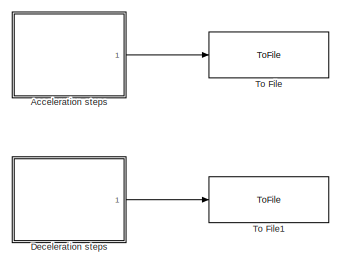
[diagram: root canvas - part 1/3, top left region]
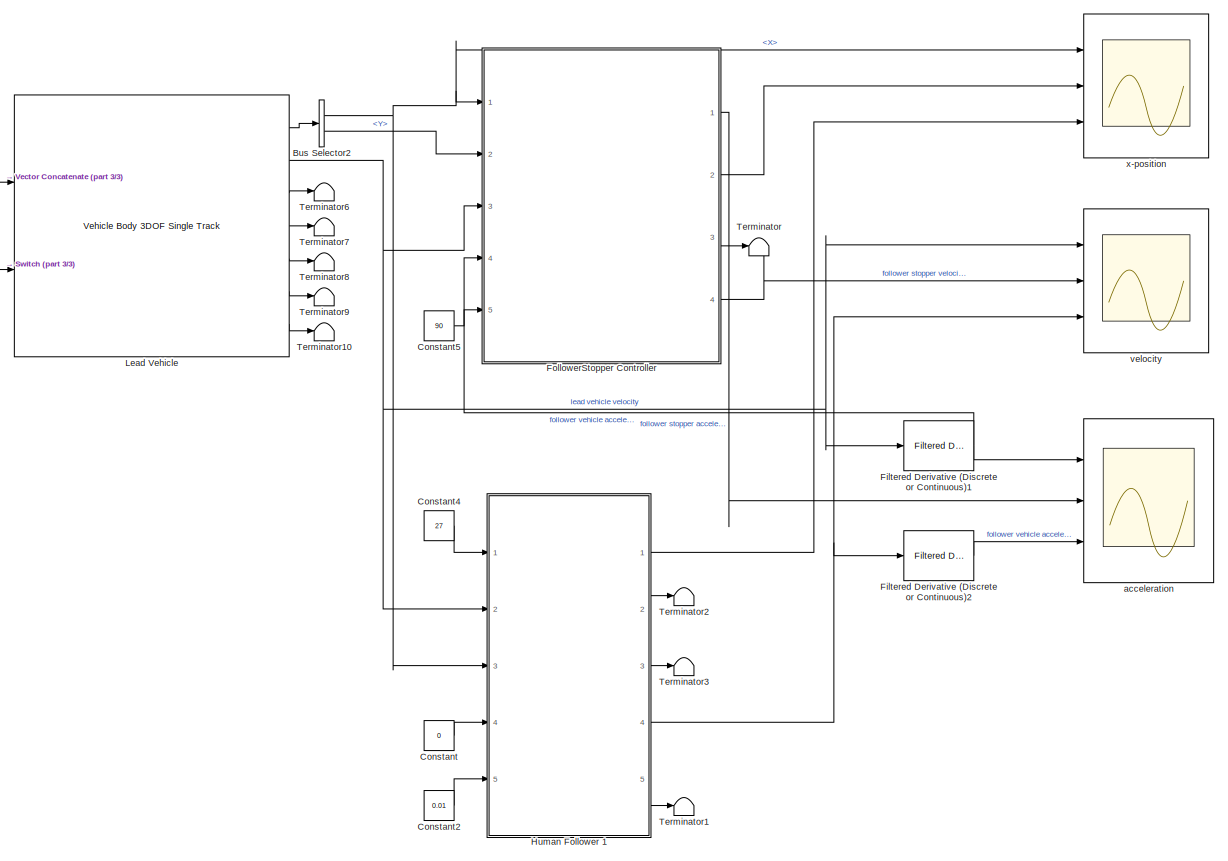
[diagram: root canvas - part 2/3, middle right region]
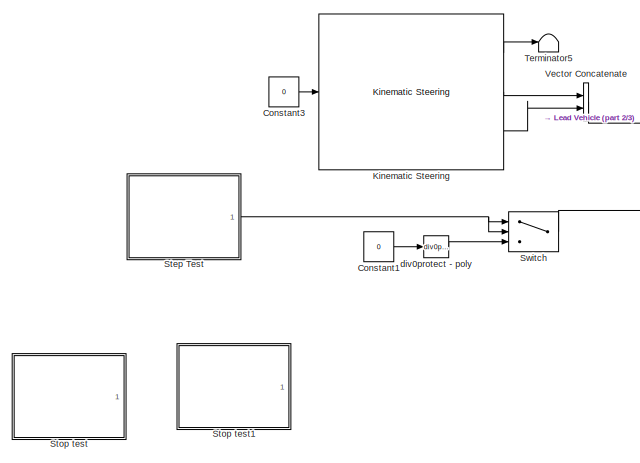
[diagram: root canvas - part 3/3, middle left region]
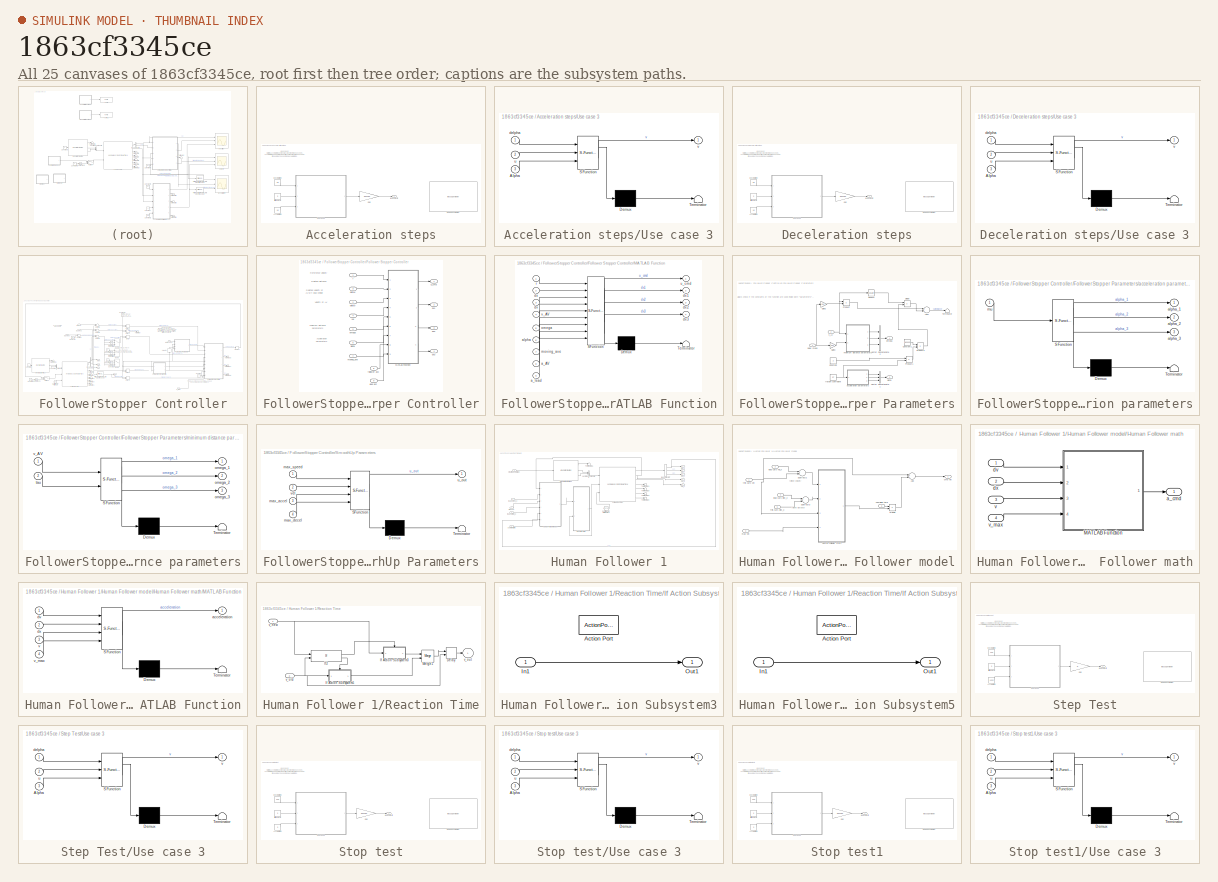
[diagram: thumbnail index - all 25 canvases of the model, root first then tree order]
MODEL slx_1863cf3345ce
KIND model
CONFIG AbsTol = auto
CONFIG EnableMultiTasking = off
CONFIG FixedStep = 0.01
CONFIG MaxStep = auto
CONFIG MinStep = auto
CONFIG RelTol = 1e-3
CONFIG SampleTimeConstraint = Unconstrained
CONFIG Solver = FixedStepAuto
CONFIG SolverName = FixedStepAuto
CONFIG StartTime = 0.0
CONFIG StopTime = 1400
BLOCK [SubSystem] Acceleration steps
  Commented = on
  Ports = [0, 1]
  RequestExecContextInheritance = off
BLOCK [Constant] Acceleration steps/Acceleration
  Value = 1.5
BLOCK [Constant] Acceleration steps/Deceleration
  Value = -1.5
BLOCK [Gain] Acceleration steps/Gain
  Gain = 0.44704
  OutDataTypeStr = Inherit: Inherit via internal rule
  ParamDataTypeStr = Inherit: Inherit via internal rule
  SaturateOnIntegerOverflow = off
BLOCK [Constant] Acceleration steps/Initial Velocity
  Value = 0
BLOCK [MessageViewer] Acceleration steps/Sequence Viewer
BLOCK [SubSystem] Acceleration steps/Use case 3
  ErrorFcn = Stateflow.Translate.translate
  PermitHierarchicalResolution = ExplicitOnly
  Ports = [3, 1]
  RequestExecContextInheritance = off
  SFBlockType = Chart
  TreatAsAtomicUnit = on
BLOCK [Demux] Acceleration steps/Use case 3/ Demux 
  Outputs = 1
  Ports = [1, 1]
BLOCK [S-Function] Acceleration steps/Use case 3/ SFunction 
  EnableBusSupport = on
  FunctionName = sf_sfun
  PortCounts = [3 2]
  Ports = [3, 2]
  SFcnIsStateOwnerBlock = off
  SFunctionDeploymentMode = off
  Tag = Stateflow S-Function stringStabilityTest 3
BLOCK [Terminator] Acceleration steps/Use case 3/ Terminator 
BLOCK [Inport] Acceleration steps/Use case 3/Alpha
  IconDisplay = Port number
  Port = 3
BLOCK [Inport] Acceleration steps/Use case 3/delpha
  IconDisplay = Port number
BLOCK [Inport] Acceleration steps/Use case 3/u
  IconDisplay = Port number
  Port = 2
BLOCK [Outport] Acceleration steps/Use case 3/v
  IconDisplay = Port number
BLOCK [Outport] Acceleration steps/lead velocity
  IconDisplay = Port number
BLOCK [BusSelector] Bus Selector2
  OutputAsBus = off
  OutputSignals = InertFrm.Geom.Disp.X,InertFrm.Geom.Disp.Y
  Ports = [1, 2]
BLOCK [Constant] Constant
  Value = 0
BLOCK [Constant] Constant1
  Value = 0
BLOCK [Constant] Constant2
  Value = 0.01
BLOCK [Constant] Constant3
  Value = 0
BLOCK [Constant] Constant4
  Value = 27
BLOCK [Constant] Constant5
  Value = 90
BLOCK [SubSystem] Deceleration steps
  Commented = on
  Ports = [0, 1]
  RequestExecContextInheritance = off
BLOCK [Constant] Deceleration steps/Acceleration
  Value = 1.5
BLOCK [Constant] Deceleration steps/Deceleration
  Value = -1.5
BLOCK [Gain] Deceleration steps/Gain
  Gain = 0.44704
  OutDataTypeStr = Inherit: Inherit via internal rule
  ParamDataTypeStr = Inherit: Inherit via internal rule
  SaturateOnIntegerOverflow = off
BLOCK [Constant] Deceleration steps/Initial Velocity
  Value = 0
BLOCK [MessageViewer] Deceleration steps/Sequence Viewer
BLOCK [SubSystem] Deceleration steps/Use case 3
  ErrorFcn = Stateflow.Translate.translate
  PermitHierarchicalResolution = ExplicitOnly
  Ports = [3, 1]
  RequestExecContextInheritance = off
  SFBlockType = Chart
  TreatAsAtomicUnit = on
BLOCK [Demux] Deceleration steps/Use case 3/ Demux 
  Outputs = 1
  Ports = [1, 1]
BLOCK [S-Function] Deceleration steps/Use case 3/ SFunction 
  EnableBusSupport = on
  FunctionName = sf_sfun
  PortCounts = [3 2]
  Ports = [3, 2]
  SFcnIsStateOwnerBlock = off
  SFunctionDeploymentMode = off
  Tag = Stateflow S-Function stringStabilityTest 4
BLOCK [Terminator] Deceleration steps/Use case 3/ Terminator 
BLOCK [Inport] Deceleration steps/Use case 3/Alpha
  IconDisplay = Port number
  Port = 3
BLOCK [Inport] Deceleration steps/Use case 3/delpha
  IconDisplay = Port number
BLOCK [Inport] Deceleration steps/Use case 3/u
  IconDisplay = Port number
  Port = 2
BLOCK [Outport] Deceleration steps/Use case 3/v
  IconDisplay = Port number
BLOCK [Outport] Deceleration steps/lead velocity
  IconDisplay = Port number
BLOCK [Reference] Filtered Derivative (Discrete or Continuous)1  REF=eeGeneralControl/Filtered Derivative
(Discrete or Continuous)
  Ports = [1, 1]
  SourceBlock = eeGeneralControl/Filtered Derivative\n(Discrete or Continuous)
  SourceProductBaseCode = PS
  SourceProductName = Simscape Electrical
  SourceType = Filtered Derivative (Discrete or Continuous)
BLOCK [Reference] Filtered Derivative (Discrete or Continuous)2  REF=eeGeneralControl/Filtered Derivative
(Discrete or Continuous)
  Ports = [1, 1]
  SourceBlock = eeGeneralControl/Filtered Derivative\n(Discrete or Continuous)
  SourceProductBaseCode = PS
  SourceProductName = Simscape Electrical
  SourceType = Filtered Derivative (Discrete or Continuous)
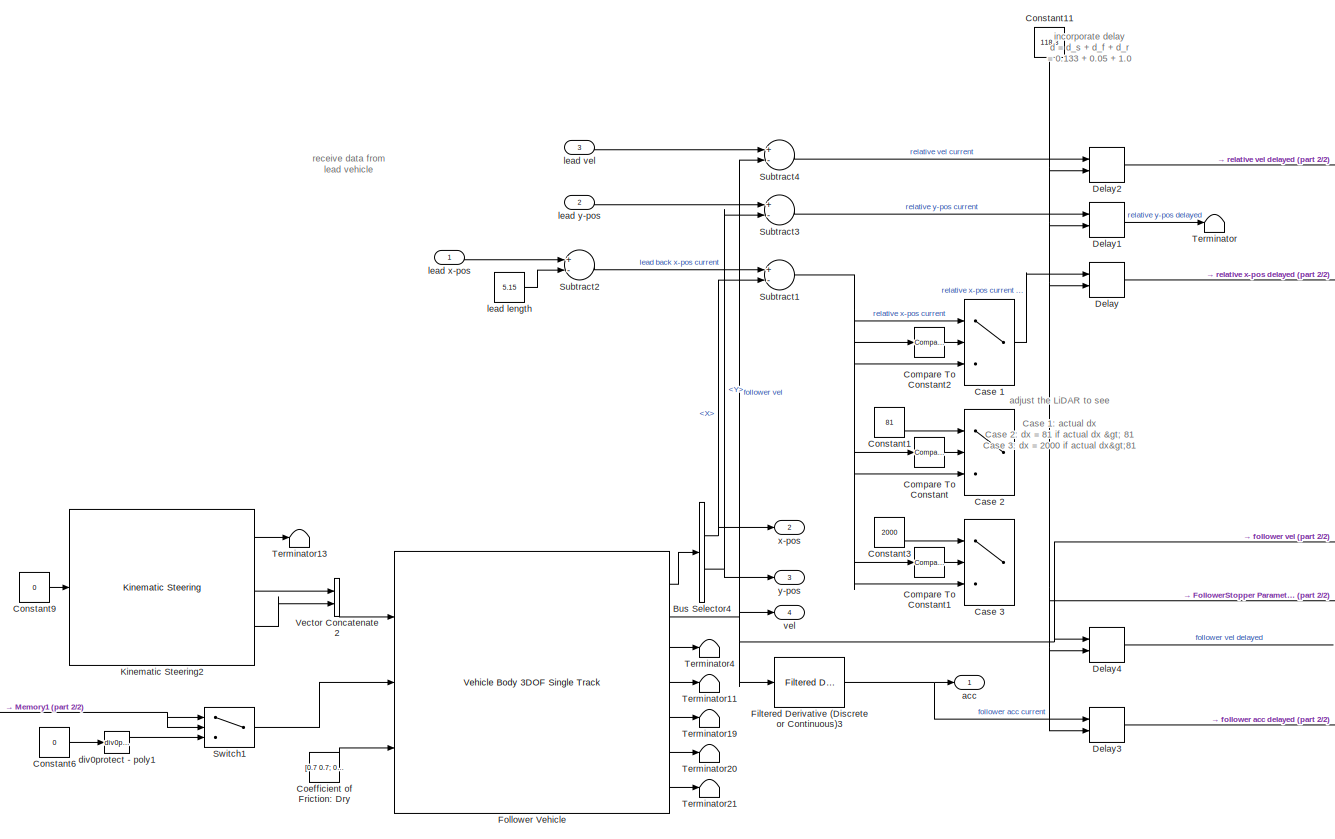
[diagram: FollowerStopper Controller - part 1/2, left side, full height]
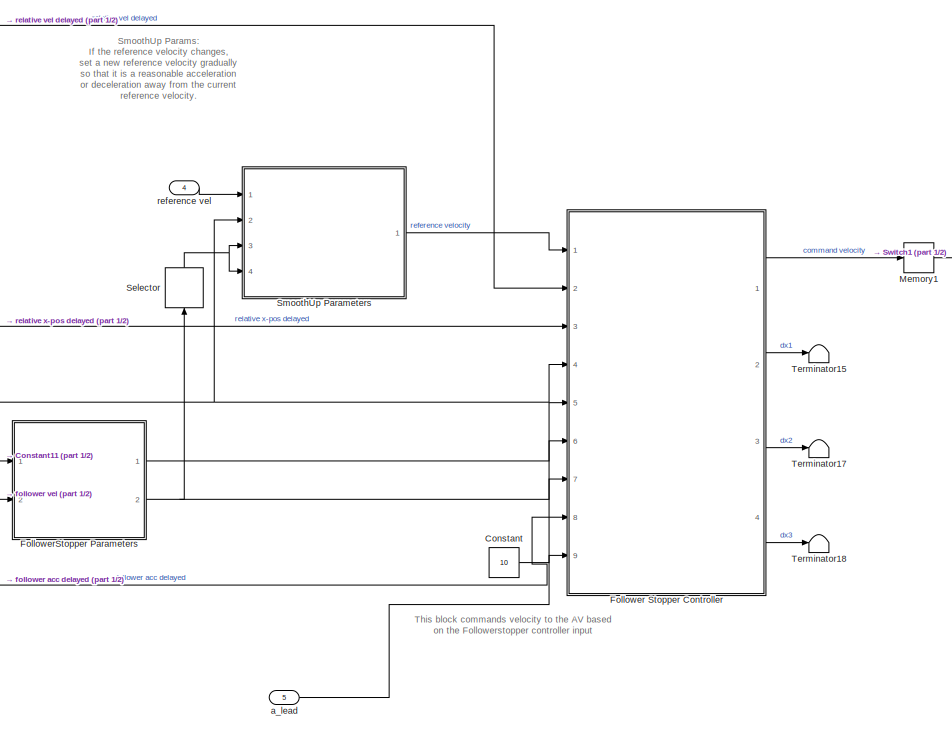
[diagram: FollowerStopper Controller - part 2/2, right side, full height]
BLOCK [SubSystem] FollowerStopper Controller
  Ports = [5, 4]
  RequestExecContextInheritance = off
BLOCK [BusSelector] FollowerStopper Controller/Bus Selector4
  OutputAsBus = off
  OutputSignals = InertFrm.Geom.Disp.X,InertFrm.Geom.Disp.Y
  Ports = [1, 2]
BLOCK [Switch] FollowerStopper Controller/Case 1
  Criteria = u2 > Threshold
  InputSameDT = off
  SaturateOnIntegerOverflow = off
BLOCK [Switch] FollowerStopper Controller/Case 2
  Criteria = u2 > Threshold
  InputSameDT = off
  SaturateOnIntegerOverflow = off
BLOCK [Switch] FollowerStopper Controller/Case 3
  Criteria = u2 > Threshold
  InputSameDT = off
  SaturateOnIntegerOverflow = off
BLOCK [Constant] FollowerStopper Controller/Coefficient of Friction: Dry
  Value = [0.7 0.7; 0.7 0.7]
BLOCK [Reference] FollowerStopper Controller/Compare To Constant  REF=simulink/Logic and Bit
Operations/Compare
To Constant
  Ports = [1, 1]
  SourceBlock = simulink/Logic and Bit\nOperations/Compare\nTo Constant
  SourceProductBaseCode = SL
  SourceProductName = Simulink
  SourceType = Compare To Constant
BLOCK [Reference] FollowerStopper Controller/Compare To Constant1  REF=simulink/Logic and Bit
Operations/Compare
To Constant
  Ports = [1, 1]
  SourceBlock = simulink/Logic and Bit\nOperations/Compare\nTo Constant
  SourceProductBaseCode = SL
  SourceProductName = Simulink
  SourceType = Compare To Constant
BLOCK [Reference] FollowerStopper Controller/Compare To Constant2  REF=simulink/Logic and Bit
Operations/Compare
To Constant
  Ports = [1, 1]
  SourceBlock = simulink/Logic and Bit\nOperations/Compare\nTo Constant
  SourceProductBaseCode = SL
  SourceProductName = Simulink
  SourceType = Compare To Constant
BLOCK [Constant] FollowerStopper Controller/Constant
  Value = 10
BLOCK [Constant] FollowerStopper Controller/Constant1
  Value = 81
BLOCK [Constant] FollowerStopper Controller/Constant11
  Value = 118.3
BLOCK [Constant] FollowerStopper Controller/Constant3
  Value = 2000
BLOCK [Constant] FollowerStopper Controller/Constant6
  Value = 0
BLOCK [Constant] FollowerStopper Controller/Constant9
  Value = 0
BLOCK [Delay] FollowerStopper Controller/Delay
  DelayLength = 183
  DelayLengthSource = Input port
  InputPortMap = u0,p1
  Ports = [2, 1]
BLOCK [Delay] FollowerStopper Controller/Delay1
  DelayLength = 183
  DelayLengthSource = Input port
  InputPortMap = u0,p1
  Ports = [2, 1]
BLOCK [Delay] FollowerStopper Controller/Delay2
  DelayLength = 183
  DelayLengthSource = Input port
  InputPortMap = u0,p1
  Ports = [2, 1]
BLOCK [Delay] FollowerStopper Controller/Delay3
  DelayLength = 183
  DelayLengthSource = Input port
  InputPortMap = u0,p1
  Ports = [2, 1]
BLOCK [Delay] FollowerStopper Controller/Delay4
  DelayLength = 183
  DelayLengthSource = Input port
  InputPortMap = u0,p1
  Ports = [2, 1]
BLOCK [Reference] FollowerStopper Controller/Filtered Derivative (Discrete or Continuous)3  REF=eeGeneralControl/Filtered Derivative
(Discrete or Continuous)
  Ports = [1, 1]
  SourceBlock = eeGeneralControl/Filtered Derivative\n(Discrete or Continuous)
  SourceProductBaseCode = PS
  SourceProductName = Simscape Electrical
  SourceType = Filtered Derivative (Discrete or Continuous)
BLOCK [SubSystem] FollowerStopper Controller/Follower Stopper Controller
  Ports = [9, 4]
  RequestExecContextInheritance = off
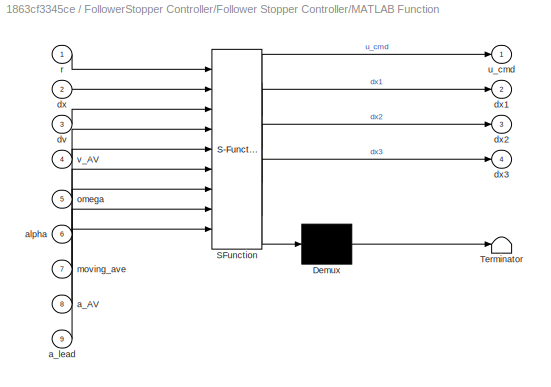
BLOCK [SubSystem] FollowerStopper Controller/Follower Stopper Controller/MATLAB Function
  ErrorFcn = Stateflow.Translate.translate
  PermitHierarchicalResolution = ExplicitOnly
  Ports = [9, 4]
  RequestExecContextInheritance = off
  SFBlockType = MATLAB Function
  TreatAsAtomicUnit = on
BLOCK [Demux] FollowerStopper Controller/Follower Stopper Controller/MATLAB Function/ Demux 
  Outputs = 1
  Ports = [1, 1]
BLOCK [S-Function] FollowerStopper Controller/Follower Stopper Controller/MATLAB Function/ SFunction 
  EnableBusSupport = on
  FunctionName = sf_sfun
  PortCounts = [9 5]
  Ports = [9, 5]
  SFcnIsStateOwnerBlock = off
  SFunctionDeploymentMode = off
  Tag = Stateflow S-Function stringStabilityTest 12
BLOCK [Terminator] FollowerStopper Controller/Follower Stopper Controller/MATLAB Function/ Terminator 
BLOCK [Inport] FollowerStopper Controller/Follower Stopper Controller/MATLAB Function/a_AV
  IconDisplay = Port number
  Port = 8
BLOCK [Inport] FollowerStopper Controller/Follower Stopper Controller/MATLAB Function/a_lead
  IconDisplay = Port number
  Port = 9
BLOCK [Inport] FollowerStopper Controller/Follower Stopper Controller/MATLAB Function/alpha
  IconDisplay = Port number
  Port = 6
BLOCK [Inport] FollowerStopper Controller/Follower Stopper Controller/MATLAB Function/dv
  IconDisplay = Port number
  Port = 3
BLOCK [Inport] FollowerStopper Controller/Follower Stopper Controller/MATLAB Function/dx
  IconDisplay = Port number
  Port = 2
BLOCK [Outport] FollowerStopper Controller/Follower Stopper Controller/MATLAB Function/dx1
  IconDisplay = Port number
  Port = 2
BLOCK [Outport] FollowerStopper Controller/Follower Stopper Controller/MATLAB Function/dx2
  IconDisplay = Port number
  Port = 3
BLOCK [Outport] FollowerStopper Controller/Follower Stopper Controller/MATLAB Function/dx3
  IconDisplay = Port number
  Port = 4
BLOCK [Inport] FollowerStopper Controller/Follower Stopper Controller/MATLAB Function/moving_ave
  IconDisplay = Port number
  Port = 7
BLOCK [Inport] FollowerStopper Controller/Follower Stopper Controller/MATLAB Function/omega
  IconDisplay = Port number
  Port = 5
BLOCK [Inport] FollowerStopper Controller/Follower Stopper Controller/MATLAB Function/r
  IconDisplay = Port number
BLOCK [Outport] FollowerStopper Controller/Follower Stopper Controller/MATLAB Function/u_cmd
  IconDisplay = Port number
BLOCK [Inport] FollowerStopper Controller/Follower Stopper Controller/MATLAB Function/v_AV
  IconDisplay = Port number
  Port = 4
BLOCK [Inport] FollowerStopper Controller/Follower Stopper Controller/alpha
  IconDisplay = Port number
  Port = 6
BLOCK [Inport] FollowerStopper Controller/Follower Stopper Controller/deltaV
  IconDisplay = Port number
  Port = 2
BLOCK [Inport] FollowerStopper Controller/Follower Stopper Controller/deltaX
  IconDisplay = Port number
  Port = 3
BLOCK [Outport] FollowerStopper Controller/Follower Stopper Controller/dx1
  IconDisplay = Port number
  Port = 2
BLOCK [Outport] FollowerStopper Controller/Follower Stopper Controller/dx2
  IconDisplay = Port number
  Port = 3
BLOCK [Outport] FollowerStopper Controller/Follower Stopper Controller/dx3
  IconDisplay = Port number
  Port = 4
BLOCK [Inport] FollowerStopper Controller/Follower Stopper Controller/follower acc
  IconDisplay = Port number
  Port = 8
BLOCK [Inport] FollowerStopper Controller/Follower Stopper Controller/lead acc
  IconDisplay = Port number
  Port = 9
BLOCK [Inport] FollowerStopper Controller/Follower Stopper Controller/moving_ave
  IconDisplay = Port number
  Port = 7
BLOCK [Inport] FollowerStopper Controller/Follower Stopper Controller/omega
  IconDisplay = Port number
  Port = 5
BLOCK [Inport] FollowerStopper Controller/Follower Stopper Controller/r
  IconDisplay = Port number
BLOCK [Outport] FollowerStopper Controller/Follower Stopper Controller/u_cmd
  IconDisplay = Port number
BLOCK [Inport] FollowerStopper Controller/Follower Stopper Controller/vel
  IconDisplay = Port number
  Port = 4
BLOCK [Reference] FollowerStopper Controller/Follower Vehicle  REF=autolibshared/Vehicle Body 3DOF Single Track
  Ports = [3, 7]
  SourceBlock = autolibshared/Vehicle Body 3DOF Single Track
  SourceProductBaseCode = PW
  SourceProductName = Powertrain Blockset
  SourceType = Vehicle Body 3DOF Lateral
BLOCK [SubSystem] FollowerStopper Controller/FollowerStopper Parameters
  Ports = [2, 2]
  RequestExecContextInheritance = off
BLOCK [Sum] FollowerStopper Controller/FollowerStopper Parameters/Add1
  InputSameDT = off
  OutDataTypeStr = Inherit: Inherit via internal rule
  Ports = [2, 1]
  SaturateOnIntegerOverflow = off
BLOCK [Constant] FollowerStopper Controller/FollowerStopper Parameters/Constant
  Value = 2
BLOCK [Constant] FollowerStopper Controller/FollowerStopper Parameters/Constant1
  Value = 9.80665
BLOCK [Product] FollowerStopper Controller/FollowerStopper Parameters/Divide
  InputSameDT = off
  Inputs = */
  OutDataTypeStr = Inherit: Inherit via internal rule
  Ports = [2, 1]
  RndMeth = Floor
  SaturateOnIntegerOverflow = off
BLOCK [Gain] FollowerStopper Controller/FollowerStopper Parameters/Gain2
  Gain = 0.01
  OutDataTypeStr = Inherit: Inherit via internal rule
  ParamDataTypeStr = Inherit: Inherit via internal rule
  SaturateOnIntegerOverflow = off
BLOCK [Gain] FollowerStopper Controller/FollowerStopper Parameters/Gain3
  Gain = 0.01
  OutDataTypeStr = Inherit: Inherit via internal rule
  ParamDataTypeStr = Inherit: Inherit via internal rule
  SaturateOnIntegerOverflow = off
BLOCK [Product] FollowerStopper Controller/FollowerStopper Parameters/Product
  InputSameDT = off
  OutDataTypeStr = Inherit: Inherit via internal rule
  Ports = [2, 1]
  RndMeth = Floor
  SaturateOnIntegerOverflow = off
BLOCK [Product] FollowerStopper Controller/FollowerStopper Parameters/Product1
  InputSameDT = off
  OutDataTypeStr = Inherit: Inherit via internal rule
  Ports = [2, 1]
  RndMeth = Floor
  SaturateOnIntegerOverflow = off
BLOCK [Product] FollowerStopper Controller/FollowerStopper Parameters/Product2
  InputSameDT = off
  OutDataTypeStr = Inherit: Inherit via internal rule
  Ports = [2, 1]
  RndMeth = Floor
  SaturateOnIntegerOverflow = off
BLOCK [Math] FollowerStopper Controller/FollowerStopper Parameters/Square
  Operator = square
  Ports = [1, 1]
BLOCK [Terminator] FollowerStopper Controller/FollowerStopper Parameters/Terminator
BLOCK [Concatenate] FollowerStopper Controller/FollowerStopper Parameters/Vector Concatenate1
  NumInputs = 3
  Ports = [3, 1]
BLOCK [Concatenate] FollowerStopper Controller/FollowerStopper Parameters/Vector Concatenate2
  NumInputs = 3
  Ports = [3, 1]
BLOCK [SubSystem] FollowerStopper Controller/FollowerStopper Parameters/acceleration parameters
  ErrorFcn = Stateflow.Translate.translate
  PermitHierarchicalResolution = ExplicitOnly
  Ports = [1, 3]
  RequestExecContextInheritance = off
  SFBlockType = MATLAB Function
  TreatAsAtomicUnit = on
BLOCK [Demux] FollowerStopper Controller/FollowerStopper Parameters/acceleration parameters/ Demux 
  Outputs = 1
  Ports = [1, 1]
BLOCK [S-Function] FollowerStopper Controller/FollowerStopper Parameters/acceleration parameters/ SFunction 
  EnableBusSupport = on
  FunctionName = sf_sfun
  PortCounts = [1 4]
  Ports = [1, 4]
  SFcnIsStateOwnerBlock = off
  SFunctionDeploymentMode = off
  Tag = Stateflow S-Function stringStabilityTest 14
BLOCK [Terminator] FollowerStopper Controller/FollowerStopper Parameters/acceleration parameters/ Terminator 
BLOCK [Outport] FollowerStopper Controller/FollowerStopper Parameters/acceleration parameters/alpha_1
  IconDisplay = Port number
BLOCK [Outport] FollowerStopper Controller/FollowerStopper Parameters/acceleration parameters/alpha_2
  IconDisplay = Port number
  Port = 2
BLOCK [Outport] FollowerStopper Controller/FollowerStopper Parameters/acceleration parameters/alpha_3
  IconDisplay = Port number
  Port = 3
BLOCK [Inport] FollowerStopper Controller/FollowerStopper Parameters/acceleration parameters/mu
  IconDisplay = Port number
BLOCK [Outport] FollowerStopper Controller/FollowerStopper Parameters/alpha
  IconDisplay = Port number
  Port = 2
BLOCK [Inport] FollowerStopper Controller/FollowerStopper Parameters/delay steps
  IconDisplay = Port number
BLOCK [Constant] FollowerStopper Controller/FollowerStopper Parameters/friction coefficient
  Value = 0.7
BLOCK [SubSystem] FollowerStopper Controller/FollowerStopper Parameters/minimum distance parameters
  ErrorFcn = Stateflow.Translate.translate
  PermitHierarchicalResolution = ExplicitOnly
  Ports = [2, 3]
  RequestExecContextInheritance = off
  SFBlockType = MATLAB Function
  TreatAsAtomicUnit = on
BLOCK [Demux] FollowerStopper Controller/FollowerStopper Parameters/minimum distance parameters/ Demux 
  Outputs = 1
  Ports = [1, 1]
BLOCK [S-Function] FollowerStopper Controller/FollowerStopper Parameters/minimum distance parameters/ SFunction 
  EnableBusSupport = on
  FunctionName = sf_sfun
  PortCounts = [2 4]
  Ports = [2, 4]
  SFcnIsStateOwnerBlock = off
  SFunctionDeploymentMode = off
  Tag = Stateflow S-Function stringStabilityTest 15
BLOCK [Terminator] FollowerStopper Controller/FollowerStopper Parameters/minimum distance parameters/ Terminator 
BLOCK [Outport] FollowerStopper Controller/FollowerStopper Parameters/minimum distance parameters/omega_1
  IconDisplay = Port number
BLOCK [Outport] FollowerStopper Controller/FollowerStopper Parameters/minimum distance parameters/omega_2
  IconDisplay = Port number
  Port = 2
BLOCK [Outport] FollowerStopper Controller/FollowerStopper Parameters/minimum distance parameters/omega_3
  IconDisplay = Port number
  Port = 3
BLOCK [Inport] FollowerStopper Controller/FollowerStopper Parameters/minimum distance parameters/tau
  IconDisplay = Port number
  Port = 2
BLOCK [Inport] FollowerStopper Controller/FollowerStopper Parameters/minimum distance parameters/v_AV
  IconDisplay = Port number
BLOCK [Outport] FollowerStopper Controller/FollowerStopper Parameters/omega
  IconDisplay = Port number
BLOCK [Inport] FollowerStopper Controller/FollowerStopper Parameters/v_AV
  IconDisplay = Port number
  Port = 2
BLOCK [Reference] FollowerStopper Controller/Kinematic Steering2  REF=vehdynlibsteering/Kinematic Steering
  Ports = [1, 3]
  SourceBlock = vehdynlibsteering/Kinematic Steering
  SourceProductBaseCode = VE
  SourceProductName = Vehicle Dynamics Blockset
  SourceType = Kinematic Steering
BLOCK [Memory] FollowerStopper Controller/Memory1
BLOCK [Selector] FollowerStopper Controller/Selector
  IndexOptions = Index vector (dialog)
  Indices = 2
  InputPortWidth = 3
  OutputSizes = 1
  Ports = [1, 1]
BLOCK [SubSystem] FollowerStopper Controller/SmoothUp Parameters
  ErrorFcn = Stateflow.Translate.translate
  PermitHierarchicalResolution = ExplicitOnly
  Ports = [4, 1]
  RequestExecContextInheritance = off
  SFBlockType = MATLAB Function
  TreatAsAtomicUnit = on
BLOCK [Demux] FollowerStopper Controller/SmoothUp Parameters/ Demux 
  Outputs = 1
  Ports = [1, 1]
BLOCK [S-Function] FollowerStopper Controller/SmoothUp Parameters/ SFunction 
  EnableBusSupport = on
  FunctionName = sf_sfun
  PortCounts = [4 2]
  Ports = [4, 2]
  SFcnIsStateOwnerBlock = off
  SFunctionDeploymentMode = off
  Tag = Stateflow S-Function stringStabilityTest 13
BLOCK [Terminator] FollowerStopper Controller/SmoothUp Parameters/ Terminator 
BLOCK [Inport] FollowerStopper Controller/SmoothUp Parameters/max_accel
  IconDisplay = Port number
  Port = 3
BLOCK [Inport] FollowerStopper Controller/SmoothUp Parameters/max_decel
  IconDisplay = Port number
  Port = 4
BLOCK [Inport] FollowerStopper Controller/SmoothUp Parameters/max_speed
  IconDisplay = Port number
BLOCK [Outport] FollowerStopper Controller/SmoothUp Parameters/u_out
  IconDisplay = Port number
BLOCK [Inport] FollowerStopper Controller/SmoothUp Parameters/vel
  IconDisplay = Port number
  Port = 2
BLOCK [Sum] FollowerStopper Controller/Subtract1
  InputSameDT = off
  Inputs = +-
  OutDataTypeStr = Inherit: Inherit via internal rule
  Ports = [2, 1]
  SaturateOnIntegerOverflow = off
BLOCK [Sum] FollowerStopper Controller/Subtract2
  InputSameDT = off
  Inputs = +-
  OutDataTypeStr = Inherit: Inherit via internal rule
  Ports = [2, 1]
  SaturateOnIntegerOverflow = off
BLOCK [Sum] FollowerStopper Controller/Subtract3
  InputSameDT = off
  Inputs = +-
  OutDataTypeStr = Inherit: Inherit via internal rule
  Ports = [2, 1]
  SaturateOnIntegerOverflow = off
BLOCK [Sum] FollowerStopper Controller/Subtract4
  InputSameDT = off
  Inputs = +-
  OutDataTypeStr = Inherit: Inherit via internal rule
  Ports = [2, 1]
  SaturateOnIntegerOverflow = off
BLOCK [Switch] FollowerStopper Controller/Switch1
  Criteria = u2 > Threshold
  InputSameDT = off
  SaturateOnIntegerOverflow = off
BLOCK [Terminator] FollowerStopper Controller/Terminator
BLOCK [Terminator] FollowerStopper Controller/Terminator11
BLOCK [Terminator] FollowerStopper Controller/Terminator13
BLOCK [Terminator] FollowerStopper Controller/Terminator15
BLOCK [Terminator] FollowerStopper Controller/Terminator17
BLOCK [Terminator] FollowerStopper Controller/Terminator18
BLOCK [Terminator] FollowerStopper Controller/Terminator19
BLOCK [Terminator] FollowerStopper Controller/Terminator20
BLOCK [Terminator] FollowerStopper Controller/Terminator21
BLOCK [Terminator] FollowerStopper Controller/Terminator4
BLOCK [Concatenate] FollowerStopper Controller/Vector Concatenate2
  Ports = [2, 1]
BLOCK [Inport] FollowerStopper Controller/a_lead
  IconDisplay = Port number
  Port = 5
BLOCK [Outport] FollowerStopper Controller/acc
  IconDisplay = Port number
BLOCK [Reference] FollowerStopper Controller/div0protect - poly1  REF=autolibutils/div0protect - poly
  Ports = [1, 1]
  SourceBlock = autolibutils/div0protect - poly
  SourceProductBaseCode = PW
  SourceProductName = Powertrain Blockset
BLOCK [Constant] FollowerStopper Controller/lead length
  Value = 5.15
BLOCK [Inport] FollowerStopper Controller/lead vel
  IconDisplay = Port number
  Port = 3
BLOCK [Inport] FollowerStopper Controller/lead x-pos
  IconDisplay = Port number
BLOCK [Inport] FollowerStopper Controller/lead y-pos
  IconDisplay = Port number
  Port = 2
BLOCK [Inport] FollowerStopper Controller/reference vel
  IconDisplay = Port number
  Port = 4
BLOCK [Outport] FollowerStopper Controller/vel
  IconDisplay = Port number
  Port = 4
BLOCK [Outport] FollowerStopper Controller/x-pos
  IconDisplay = Port number
  Port = 2
BLOCK [Outport] FollowerStopper Controller/y-pos
  IconDisplay = Port number
  Port = 3
BLOCK [SubSystem] Human Follower 1
  Commented = on
  Ports = [5, 5]
  RequestExecContextInheritance = off
BLOCK [BusSelector] Human Follower 1/Bus Selector7
  OutputAsBus = off
  OutputSignals = InertFrm.Cg.Disp.X,InertFrm.Cg.Disp.Y,InertFrm.Cg.Disp.Z
  Ports = [1, 3]
BLOCK [Constant] Human Follower 1/Coefficient of Friction: Dry1
  Value = [0.7 0.7; 0.7 0.7]
BLOCK [Reference] Human Follower 1/Follower Vehicle1  REF=autolibshared/Vehicle Body 3DOF Single Track
  Ports = [3, 7]
  SourceBlock = autolibshared/Vehicle Body 3DOF Single Track
  SourceProductBaseCode = PW
  SourceProductName = Powertrain Blockset
  SourceType = Vehicle Body 3DOF Lateral
BLOCK [SubSystem] Human Follower 1/Human Follower model
  Ports = [6, 1]
  RequestExecContextInheritance = off
BLOCK [Sum] Human Follower 1/Human Follower model/Add
  InputSameDT = off
  OutDataTypeStr = Inherit: Inherit via internal rule
  Ports = [2, 1]
  SaturateOnIntegerOverflow = off
BLOCK [SubSystem] Human Follower 1/Human Follower model/Human Follower math
  Ports = [4, 1]
  RequestExecContextInheritance = off
BLOCK [SubSystem] Human Follower 1/Human Follower model/Human Follower math/MATLAB Function
  ErrorFcn = Stateflow.Translate.translate
  PermitHierarchicalResolution = ExplicitOnly
  Ports = [4, 1]
  RequestExecContextInheritance = off
  SFBlockType = MATLAB Function
  TreatAsAtomicUnit = on
BLOCK [Demux] Human Follower 1/Human Follower model/Human Follower math/MATLAB Function/ Demux 
  Outputs = 1
  Ports = [1, 1]
BLOCK [S-Function] Human Follower 1/Human Follower model/Human Follower math/MATLAB Function/ SFunction 
  EnableBusSupport = on
  FunctionName = sf_sfun
  PortCounts = [4 2]
  Ports = [4, 2]
  SFcnIsStateOwnerBlock = off
  SFunctionDeploymentMode = off
  Tag = Stateflow S-Function stringStabilityTest 5
BLOCK [Terminator] Human Follower 1/Human Follower model/Human Follower math/MATLAB Function/ Terminator 
BLOCK [Outport] Human Follower 1/Human Follower model/Human Follower math/MATLAB Function/acceleration
  IconDisplay = Port number
BLOCK [Inport] Human Follower 1/Human Follower model/Human Follower math/MATLAB Function/dv
  IconDisplay = Port number
BLOCK [Inport] Human Follower 1/Human Follower model/Human Follower math/MATLAB Function/dx
  IconDisplay = Port number
  Port = 2
BLOCK [Inport] Human Follower 1/Human Follower model/Human Follower math/MATLAB Function/v
  IconDisplay = Port number
  Port = 3
BLOCK [Inport] Human Follower 1/Human Follower model/Human Follower math/MATLAB Function/v_max
  IconDisplay = Port number
  Port = 4
BLOCK [Outport] Human Follower 1/Human Follower model/Human Follower math/a_cmd
  IconDisplay = Port number
BLOCK [Inport] Human Follower 1/Human Follower model/Human Follower math/dv
  IconDisplay = Port number
BLOCK [Inport] Human Follower 1/Human Follower model/Human Follower math/dx
  IconDisplay = Port number
  Port = 2
BLOCK [Inport] Human Follower 1/Human Follower model/Human Follower math/v
  IconDisplay = Port number
  Port = 3
BLOCK [Inport] Human Follower 1/Human Follower model/Human Follower math/v_max
  IconDisplay = Port number
  Port = 4
BLOCK [Product] Human Follower 1/Human Follower model/Multiply
  InputSameDT = off
  OutDataTypeStr = Inherit: Inherit via internal rule
  Ports = [2, 1]
  RndMeth = Floor
  SaturateOnIntegerOverflow = off
BLOCK [Sum] Human Follower 1/Human Follower model/Subtract2
  InputSameDT = off
  Inputs = +-
  OutDataTypeStr = Inherit: Inherit via internal rule
  Ports = [2, 1]
  SaturateOnIntegerOverflow = off
BLOCK [Sum] Human Follower 1/Human Follower model/Subtract3
  InputSameDT = off
  Inputs = +-
  OutDataTypeStr = Inherit: Inherit via internal rule
  Ports = [2, 1]
  SaturateOnIntegerOverflow = off
BLOCK [Outport] Human Follower 1/Human Follower model/cmd Vel
  IconDisplay = Port number
BLOCK [Inport] Human Follower 1/Human Follower model/lead cars dist_x
  IconDisplay = Port number
  Port = 4
BLOCK [Inport] Human Follower 1/Human Follower model/lead cars vel_x
  IconDisplay = Port number
  Port = 2
BLOCK [Inport] Human Follower 1/Human Follower model/max vel
  IconDisplay = Port number
  Port = 3
BLOCK [Inport] Human Follower 1/Human Follower model/sampling time
  IconDisplay = Port number
  Port = 6
BLOCK [Inport] Human Follower 1/Human Follower model/this cars dist_x
  IconDisplay = Port number
  Port = 5
BLOCK [Inport] Human Follower 1/Human Follower model/this cars vel
  IconDisplay = Port number
BLOCK [Reference] Human Follower 1/Kinematic Steering3  REF=vehdynlibsteering/Kinematic Steering
  Ports = [1, 3]
  SourceBlock = vehdynlibsteering/Kinematic Steering
  SourceProductBaseCode = VE
  SourceProductName = Vehicle Dynamics Blockset
  SourceType = Kinematic Steering
BLOCK [SubSystem] Human Follower 1/Reaction Time
  Ports = [2, 1]
  RequestExecContextInheritance = off
BLOCK [Delay] Human Follower 1/Reaction Time/Delay
  DelayLength = 3
  InitialConditionSource = Input port
  InputPortMap = u0,p4
  Ports = [2, 1]
BLOCK [SubSystem] Human Follower 1/Reaction Time/If Action Subsystem3
  Ports = [1, 1, 0, 0, 0, 0, 0, 1]
  RequestExecContextInheritance = off
  TreatAsAtomicUnit = on
BLOCK [ActionPort] Human Follower 1/Reaction Time/If Action Subsystem3/Action Port
  ActionPortLabel = if { }
BLOCK [Inport] Human Follower 1/Reaction Time/If Action Subsystem3/In1
  IconDisplay = Port number
BLOCK [Outport] Human Follower 1/Reaction Time/If Action Subsystem3/Out1
  IconDisplay = Port number
BLOCK [SubSystem] Human Follower 1/Reaction Time/If Action Subsystem5
  Ports = [1, 1, 0, 0, 0, 0, 0, 1]
  RequestExecContextInheritance = off
  TreatAsAtomicUnit = on
BLOCK [ActionPort] Human Follower 1/Reaction Time/If Action Subsystem5/Action Port
  ActionPortLabel = else { }
BLOCK [Inport] Human Follower 1/Reaction Time/If Action Subsystem5/In1
  IconDisplay = Port number
BLOCK [Outport] Human Follower 1/Reaction Time/If Action Subsystem5/Out1
  IconDisplay = Port number
BLOCK [If] Human Follower 1/Reaction Time/If2
  IfExpression = u2 ~= u1
  NumInputs = 2
  Ports = [2, 2]
BLOCK [Merge] Human Follower 1/Reaction Time/Merge1
  Ports = [2, 1]
BLOCK [Inport] Human Follower 1/Reaction Time/v_new
  IconDisplay = Port number
BLOCK [Inport] Human Follower 1/Reaction Time/v_old
  IconDisplay = Port number
  Port = 2
BLOCK [Outport] Human Follower 1/Reaction Time/v_out
  IconDisplay = Port number
BLOCK [Terminator] Human Follower 1/Terminator13
BLOCK [Terminator] Human Follower 1/Terminator16
BLOCK [Terminator] Human Follower 1/Terminator18
BLOCK [Terminator] Human Follower 1/Terminator19
BLOCK [Terminator] Human Follower 1/Terminator20
BLOCK [Concatenate] Human Follower 1/Vector Concatenate4
  Ports = [2, 1]
BLOCK [Outport] Human Follower 1/dist_x
  IconDisplay = Port number
BLOCK [Outport] Human Follower 1/dist_y
  IconDisplay = Port number
  Port = 2
BLOCK [Outport] Human Follower 1/dist_z
  IconDisplay = Port number
  Port = 3
BLOCK [Inport] Human Follower 1/lead car dist_x
  IconDisplay = Port number
  Port = 3
BLOCK [Inport] Human Follower 1/lead car vel_x
  IconDisplay = Port number
  Port = 2
BLOCK [Inport] Human Follower 1/max vel
  IconDisplay = Port number
BLOCK [Inport] Human Follower 1/sampling time
  IconDisplay = Port number
  Port = 5
BLOCK [Inport] Human Follower 1/stearing angle(rad)
  IconDisplay = Port number
  Port = 4
BLOCK [Outport] Human Follower 1/vel_x
  IconDisplay = Port number
  Port = 4
BLOCK [Outport] Human Follower 1/vel_y
  IconDisplay = Port number
  Port = 5
BLOCK [Reference] Kinematic Steering  REF=vehdynlibsteering/Kinematic Steering
  Ports = [1, 3]
  SourceBlock = vehdynlibsteering/Kinematic Steering
  SourceProductBaseCode = VE
  SourceProductName = Vehicle Dynamics Blockset
  SourceType = Kinematic Steering
BLOCK [Reference] Lead Vehicle  REF=autolibshared/Vehicle Body 3DOF Single Track
  Ports = [2, 7]
  SourceBlock = autolibshared/Vehicle Body 3DOF Single Track
  SourceProductBaseCode = PW
  SourceProductName = Powertrain Blockset
  SourceType = Vehicle Body 3DOF Lateral
BLOCK [SubSystem] Step Test
  Ports = [0, 1]
  RequestExecContextInheritance = off
BLOCK [Constant] Step Test/Acceleration
  Value = 1000
BLOCK [Constant] Step Test/Deceleration
  Value = -700
BLOCK [Gain] Step Test/Gain
  OutDataTypeStr = Inherit: Inherit via internal rule
  ParamDataTypeStr = Inherit: Inherit via internal rule
  SaturateOnIntegerOverflow = off
BLOCK [Constant] Step Test/Initial Velocity
  Value = 0
BLOCK [MessageViewer] Step Test/Sequence Viewer
BLOCK [SubSystem] Step Test/Use case 3
  ErrorFcn = Stateflow.Translate.translate
  PermitHierarchicalResolution = ExplicitOnly
  Ports = [3, 1]
  RequestExecContextInheritance = off
  SFBlockType = Chart
  TreatAsAtomicUnit = on
BLOCK [Demux] Step Test/Use case 3/ Demux 
  Outputs = 1
  Ports = [1, 1]
BLOCK [S-Function] Step Test/Use case 3/ SFunction 
  EnableBusSupport = on
  FunctionName = sf_sfun
  PortCounts = [3 2]
  Ports = [3, 2]
  SFcnIsStateOwnerBlock = off
  SFunctionDeploymentMode = off
  Tag = Stateflow S-Function stringStabilityTest 21
BLOCK [Terminator] Step Test/Use case 3/ Terminator 
BLOCK [Inport] Step Test/Use case 3/Alpha
  IconDisplay = Port number
  Port = 3
BLOCK [Inport] Step Test/Use case 3/delpha
  IconDisplay = Port number
BLOCK [Inport] Step Test/Use case 3/u
  IconDisplay = Port number
  Port = 2
BLOCK [Outport] Step Test/Use case 3/v
  IconDisplay = Port number
BLOCK [Outport] Step Test/lead velocity
  IconDisplay = Port number
BLOCK [SubSystem] Stop test
  Commented = on
  Ports = [0, 1]
  RequestExecContextInheritance = off
BLOCK [Constant] Stop test/Acceleration
  Value = 3
BLOCK [Constant] Stop test/Deceleration
  Value = -100
BLOCK [Gain] Stop test/Gain
  Gain = 0.44704
  OutDataTypeStr = Inherit: Inherit via internal rule
  ParamDataTypeStr = Inherit: Inherit via internal rule
  SaturateOnIntegerOverflow = off
BLOCK [Constant] Stop test/Initial Velocity
  Value = 0
BLOCK [MessageViewer] Stop test/Sequence Viewer
BLOCK [SubSystem] Stop test/Use case 3
  ErrorFcn = Stateflow.Translate.translate
  PermitHierarchicalResolution = ExplicitOnly
  Ports = [3, 1]
  RequestExecContextInheritance = off
  SFBlockType = Chart
  TreatAsAtomicUnit = on
BLOCK [Demux] Stop test/Use case 3/ Demux 
  Outputs = 1
  Ports = [1, 1]
BLOCK [S-Function] Stop test/Use case 3/ SFunction 
  EnableBusSupport = on
  FunctionName = sf_sfun
  PortCounts = [3 2]
  Ports = [3, 2]
  SFcnIsStateOwnerBlock = off
  SFunctionDeploymentMode = off
  Tag = Stateflow S-Function stringStabilityTest 10
BLOCK [Terminator] Stop test/Use case 3/ Terminator 
BLOCK [Inport] Stop test/Use case 3/Alpha
  IconDisplay = Port number
  Port = 3
BLOCK [Inport] Stop test/Use case 3/delpha
  IconDisplay = Port number
BLOCK [Inport] Stop test/Use case 3/u
  IconDisplay = Port number
  Port = 2
BLOCK [Outport] Stop test/Use case 3/v
  IconDisplay = Port number
BLOCK [Outport] Stop test/lead velocity
  IconDisplay = Port number
BLOCK [SubSystem] Stop test1
  Commented = on
  Ports = [0, 1]
  RequestExecContextInheritance = off
BLOCK [Constant] Stop test1/Acceleration
  Value = 3
BLOCK [Constant] Stop test1/Deceleration
  Value = -100
BLOCK [Gain] Stop test1/Gain
  Gain = 0.44704
  OutDataTypeStr = Inherit: Inherit via internal rule
  ParamDataTypeStr = Inherit: Inherit via internal rule
  SaturateOnIntegerOverflow = off
BLOCK [Constant] Stop test1/Initial Velocity
  Value = 0
BLOCK [MessageViewer] Stop test1/Sequence Viewer
BLOCK [SubSystem] Stop test1/Use case 3
  ErrorFcn = Stateflow.Translate.translate
  PermitHierarchicalResolution = ExplicitOnly
  Ports = [3, 1]
  RequestExecContextInheritance = off
  SFBlockType = Chart
  TreatAsAtomicUnit = on
BLOCK [Demux] Stop test1/Use case 3/ Demux 
  Outputs = 1
  Ports = [1, 1]
BLOCK [S-Function] Stop test1/Use case 3/ SFunction 
  EnableBusSupport = on
  FunctionName = sf_sfun
  PortCounts = [3 2]
  Ports = [3, 2]
  SFcnIsStateOwnerBlock = off
  SFunctionDeploymentMode = off
  Tag = Stateflow S-Function stringStabilityTest 1
BLOCK [Terminator] Stop test1/Use case 3/ Terminator 
BLOCK [Inport] Stop test1/Use case 3/Alpha
  IconDisplay = Port number
  Port = 3
BLOCK [Inport] Stop test1/Use case 3/delpha
  IconDisplay = Port number
BLOCK [Inport] Stop test1/Use case 3/u
  IconDisplay = Port number
  Port = 2
BLOCK [Outport] Stop test1/Use case 3/v
  IconDisplay = Port number
BLOCK [Outport] Stop test1/lead velocity
  IconDisplay = Port number
BLOCK [Switch] Switch
  Criteria = u2 > Threshold
  InputSameDT = off
  SaturateOnIntegerOverflow = off
BLOCK [Terminator] Terminator
BLOCK [Terminator] Terminator1
BLOCK [Terminator] Terminator10
BLOCK [Terminator] Terminator2
BLOCK [Terminator] Terminator3
BLOCK [Terminator] Terminator5
BLOCK [Terminator] Terminator6
BLOCK [Terminator] Terminator7
BLOCK [Terminator] Terminator8
BLOCK [Terminator] Terminator9
BLOCK [ToFile] To File
  Commented = on
  Filename = accelerationSteps.mat
  Ports = [1]
  SaveFormat = Timeseries
BLOCK [ToFile] To File1
  Commented = on
  Filename = decelerationSteps.mat
  Ports = [1]
  SaveFormat = Timeseries
BLOCK [Concatenate] Vector Concatenate
  Ports = [2, 1]
BLOCK [Scope] acceleration
  Floating = off
  NumInputPorts = 3
  Ports = [3]
  ScopeSpecificationString = Simulink.scopes.TimeScopeBlockCfg('CurrentConfiguration', extmgr.ConfigurationSet(extmgr.Configuration('Core','General UI',true),extmgr.Configuration('Core','Source UI',true),extmgr.Configuration('Sources','WiredSimulink',true,'DataLoggingVariableName','ScopeData3'),extmgr.Configuration('Visuals','Time Domain',true,'SerializedDisplays',{struct('MinYLimReal','-0.28758','MaxYLimReal','2.58824','YLab...<+1506ch>
BLOCK [Reference] div0protect - poly  REF=autolibutils/div0protect - poly
  Ports = [1, 1]
  SourceBlock = autolibutils/div0protect - poly
  SourceProductBaseCode = PW
  SourceProductName = Powertrain Blockset
BLOCK [Scope] velocity
  Floating = off
  NumInputPorts = 3
  Ports = [3]
  ScopeSpecificationString = Simulink.scopes.TimeScopeBlockCfg('CurrentConfiguration', extmgr.ConfigurationSet(extmgr.Configuration('Core','General UI',true),extmgr.Configuration('Core','Source UI',true),extmgr.Configuration('Sources','WiredSimulink',true,'DataLoggingVariableName','ScopeData2'),extmgr.Configuration('Visuals','Time Domain',true,'SerializedDisplays',{struct('MinYLimReal','-7.81436','MaxYLimReal','70.32924','YLa...<+1650ch>
BLOCK [Scope] x-position
  Floating = off
  NumInputPorts = 3
  Ports = [3]
  ScopeSpecificationString = Simulink.scopes.TimeScopeBlockCfg('CurrentConfiguration', extmgr.ConfigurationSet(extmgr.Configuration('Core','General UI',true),extmgr.Configuration('Core','Source UI',true),extmgr.Configuration('Sources','WiredSimulink',true,'DataLoggingVariableName','ScopeData1'),extmgr.Configuration('Visuals','Time Domain',true,'SerializedDisplays',{struct('MinYLimReal','-187.37498','MaxYLimReal','1686.37478',...<+1601ch>
ANNOTATION Acceleration steps: Use case 3: Start at 0. Accelerate to 20mph. Stay at 20mph for 30 seconds. Accelerate the speed to increase it by 5mph. Stay for 30 seconds. If speed reaches 60mph, decelerate to 0.
ANNOTATION Deceleration steps: Use case 3: Start at 0. Accelerate to 20mph. Stay at 20mph for 30 seconds. Accelerate the speed to increase it by 5mph. Stay for 30 seconds. If speed reaches 60mph, decelerate to 0.
ANNOTATION FollowerStopper Controller: SmoothUp Params: If the reference velocity changes, set a new reference velocity gradually so that it is a reasonable acceleration or deceleration away from the current reference velocity.
ANNOTATION FollowerStopper Controller: adjust the LiDAR to see Case 1: actual dx Case 2: dx = 81 if actual dx > 81 Case 3: dx = 2000 if actual dx>81
ANNOTATION FollowerStopper Controller: incorporate delay d = d_s + d_f + d_r = 0.133 + 0.05 + 1.0
ANNOTATION FollowerStopper Controller: receive data from lead vehicle
ANNOTATION FollowerStopper Controller: This block commands velocity to the AV based on the Followerstopper controller input
ANNOTATION FollowerStopper Controller/Follower Stopper Controller: Acceleration parameters
ANNOTATION FollowerStopper Controller/Follower Stopper Controller: Minimum distance parameters
ANNOTATION FollowerStopper Controller/Follower Stopper Controller: Reference Velocity
ANNOTATION FollowerStopper Controller/Follower Stopper Controller: Relative distance
ANNOTATION FollowerStopper Controller/Follower Stopper Controller: Relative velocity of AV wrt lead vehicle
ANNOTATION FollowerStopper Controller/Follower Stopper Controller: Velocity of AV
ANNOTATION FollowerStopper Controller/FollowerStopper Parameters: Always check if the constants or the function are used inside both "parameters" blocks
ANNOTATION Human Follower 1/Human Follower model: relitive distance
ANNOTATION Human Follower 1/Human Follower model: relitive velocity
ANNOTATION Step Test: Use case 3: Start at 0. Accelerate to 20mph. Stay at 20mph for 30 seconds. Accelerate the speed to increase it by 5mph. Stay for 30 seconds. If speed reaches 60mph, decelerate to 0.
ANNOTATION Stop test: Use case 3: Start at 0. Accelerate to 20mph. Stay at 20mph for 30 seconds. Accelerate the speed to increase it by 5mph. Stay for 30 seconds. If speed reaches 60mph, decelerate to 0.
ANNOTATION Stop test1: Use case 3: Start at 0. Accelerate to 20mph. Stay at 20mph for 30 seconds. Accelerate the speed to increase it by 5mph. Stay for 30 seconds. If speed reaches 60mph, decelerate to 0.
LINE Acceleration steps/Acceleration:1 -> Acceleration steps/Use case 3:3
LINE Acceleration steps/Deceleration:1 -> Acceleration steps/Use case 3:1
LINE Acceleration steps/Gain:1 -> Acceleration steps/lead velocity:1
LINE Acceleration steps/Initial Velocity:1 -> Acceleration steps/Use case 3:2
LINE Acceleration steps/Use case 3:1 -> Acceleration steps/Gain:1
LINE Acceleration steps:1 -> To File:1
NET Bus Selector2:1 -> FollowerStopper Controller:1, Human Follower 1:3, x-position:1
LINE Bus Selector2:2 -> FollowerStopper Controller:2
LINE Constant1:1 -> div0protect - poly:1
LINE Constant2:1 -> Human Follower 1:5
LINE Constant3:1 -> Kinematic Steering:1
LINE Constant4:1 -> Human Follower 1:1
LINE Constant5:1 -> FollowerStopper Controller:4
LINE Constant:1 -> Human Follower 1:4
LINE Deceleration steps/Acceleration:1 -> Deceleration steps/Use case 3:3
LINE Deceleration steps/Deceleration:1 -> Deceleration steps/Use case 3:1
LINE Deceleration steps/Gain:1 -> Deceleration steps/lead velocity:1
LINE Deceleration steps/Initial Velocity:1 -> Deceleration steps/Use case 3:2
LINE Deceleration steps/Use case 3:1 -> Deceleration steps/Gain:1
LINE Deceleration steps:1 -> To File1:1
NET Filtered Derivative (Discrete or Continuous)1:1 -> FollowerStopper Controller:5, acceleration:1
LINE Filtered Derivative (Discrete or Continuous)2:1 -> acceleration:3
NET FollowerStopper Controller/Bus Selector4:1 -> FollowerStopper Controller/Subtract1:2, FollowerStopper Controller/x-pos:1
NET FollowerStopper Controller/Bus Selector4:2 -> FollowerStopper Controller/Subtract3:2, FollowerStopper Controller/y-pos:1
LINE FollowerStopper Controller/Case 1:1 -> FollowerStopper Controller/Delay:1
LINE FollowerStopper Controller/Coefficient of Friction: Dry:1 -> FollowerStopper Controller/Follower Vehicle:3
LINE FollowerStopper Controller/Compare To Constant1:1 -> FollowerStopper Controller/Case 3:2
LINE FollowerStopper Controller/Compare To Constant2:1 -> FollowerStopper Controller/Case 1:2
LINE FollowerStopper Controller/Compare To Constant:1 -> FollowerStopper Controller/Case 2:2
NET FollowerStopper Controller/Constant11:1 -> FollowerStopper Controller/Delay1:2, FollowerStopper Controller/Delay2:2, FollowerStopper Controller/Delay3:2, FollowerStopper Controller/Delay4:2, FollowerStopper Controller/Delay:2, FollowerStopper Controller/FollowerStopper Parameters:1
LINE FollowerStopper Controller/Constant1:1 -> FollowerStopper Controller/Case 2:1
LINE FollowerStopper Controller/Constant3:1 -> FollowerStopper Controller/Case 3:1
LINE FollowerStopper Controller/Constant6:1 -> FollowerStopper Controller/div0protect - poly1:1
LINE FollowerStopper Controller/Constant9:1 -> FollowerStopper Controller/Kinematic Steering2:1
LINE FollowerStopper Controller/Constant:1 -> FollowerStopper Controller/Follower Stopper Controller:7
LINE FollowerStopper Controller/Delay1:1 -> FollowerStopper Controller/Terminator:1
LINE FollowerStopper Controller/Delay2:1 -> FollowerStopper Controller/Follower Stopper Controller:2
LINE FollowerStopper Controller/Delay3:1 -> FollowerStopper Controller/Follower Stopper Controller:8
LINE FollowerStopper Controller/Delay:1 -> FollowerStopper Controller/Follower Stopper Controller:3
NET FollowerStopper Controller/Filtered Derivative (Discrete or Continuous)3:1 -> FollowerStopper Controller/Delay3:1, FollowerStopper Controller/acc:1
LINE FollowerStopper Controller/Follower Stopper Controller/MATLAB Function:1 -> FollowerStopper Controller/Follower Stopper Controller/u_cmd:1
LINE FollowerStopper Controller/Follower Stopper Controller/MATLAB Function:2 -> FollowerStopper Controller/Follower Stopper Controller/dx1:1
LINE FollowerStopper Controller/Follower Stopper Controller/MATLAB Function:3 -> FollowerStopper Controller/Follower Stopper Controller/dx2:1
LINE FollowerStopper Controller/Follower Stopper Controller/MATLAB Function:4 -> FollowerStopper Controller/Follower Stopper Controller/dx3:1
LINE FollowerStopper Controller/Follower Stopper Controller/alpha:1 -> FollowerStopper Controller/Follower Stopper Controller/MATLAB Function:6
LINE FollowerStopper Controller/Follower Stopper Controller/deltaV:1 -> FollowerStopper Controller/Follower Stopper Controller/MATLAB Function:3
LINE FollowerStopper Controller/Follower Stopper Controller/deltaX:1 -> FollowerStopper Controller/Follower Stopper Controller/MATLAB Function:2
LINE FollowerStopper Controller/Follower Stopper Controller/follower acc:1 -> FollowerStopper Controller/Follower Stopper Controller/MATLAB Function:8
LINE FollowerStopper Controller/Follower Stopper Controller/lead acc:1 -> FollowerStopper Controller/Follower Stopper Controller/MATLAB Function:9
LINE FollowerStopper Controller/Follower Stopper Controller/moving_ave:1 -> FollowerStopper Controller/Follower Stopper Controller/MATLAB Function:7
LINE FollowerStopper Controller/Follower Stopper Controller/omega:1 -> FollowerStopper Controller/Follower Stopper Controller/MATLAB Function:5
LINE FollowerStopper Controller/Follower Stopper Controller/r:1 -> FollowerStopper Controller/Follower Stopper Controller/MATLAB Function:1
LINE FollowerStopper Controller/Follower Stopper Controller/vel:1 -> FollowerStopper Controller/Follower Stopper Controller/MATLAB Function:4
LINE FollowerStopper Controller/Follower Stopper Controller:1 -> FollowerStopper Controller/Memory1:1
LINE FollowerStopper Controller/Follower Stopper Controller:2 -> FollowerStopper Controller/Terminator15:1
LINE FollowerStopper Controller/Follower Stopper Controller:3 -> FollowerStopper Controller/Terminator17:1
LINE FollowerStopper Controller/Follower Stopper Controller:4 -> FollowerStopper Controller/Terminator18:1
LINE FollowerStopper Controller/Follower Vehicle:1 -> FollowerStopper Controller/Bus Selector4:1
NET FollowerStopper Controller/Follower Vehicle:2 -> FollowerStopper Controller/Delay4:1, FollowerStopper Controller/Filtered Derivative (Discrete or Continuous)3:1, FollowerStopper Controller/Follower Stopper Controller:4, FollowerStopper Controller/FollowerStopper Parameters:2, FollowerStopper Controller/SmoothUp Parameters:2, FollowerStopper Controller/Subtract4:2, FollowerStopper Controller/vel:1
LINE FollowerStopper Controller/Follower Vehicle:3 -> FollowerStopper Controller/Terminator4:1
LINE FollowerStopper Controller/Follower Vehicle:4 -> FollowerStopper Controller/Terminator11:1
LINE FollowerStopper Controller/Follower Vehicle:5 -> FollowerStopper Controller/Terminator19:1
LINE FollowerStopper Controller/Follower Vehicle:6 -> FollowerStopper Controller/Terminator20:1
LINE FollowerStopper Controller/Follower Vehicle:7 -> FollowerStopper Controller/Terminator21:1
LINE FollowerStopper Controller/FollowerStopper Parameters/Add1:1 -> FollowerStopper Controller/FollowerStopper Parameters/Terminator:1
LINE FollowerStopper Controller/FollowerStopper Parameters/Constant1:1 -> FollowerStopper Controller/FollowerStopper Parameters/Product2:1
LINE FollowerStopper Controller/FollowerStopper Parameters/Constant:1 -> FollowerStopper Controller/FollowerStopper Parameters/Product1:1
LINE FollowerStopper Controller/FollowerStopper Parameters/Divide:1 -> FollowerStopper Controller/FollowerStopper Parameters/Add1:2
LINE FollowerStopper Controller/FollowerStopper Parameters/Gain2:1 -> FollowerStopper Controller/FollowerStopper Parameters/Product:2
LINE FollowerStopper Controller/FollowerStopper Parameters/Gain3:1 -> FollowerStopper Controller/FollowerStopper Parameters/minimum distance parameters:2
LINE FollowerStopper Controller/FollowerStopper Parameters/Product1:1 -> FollowerStopper Controller/FollowerStopper Parameters/Product2:2
LINE FollowerStopper Controller/FollowerStopper Parameters/Product2:1 -> FollowerStopper Controller/FollowerStopper Parameters/Divide:2
LINE FollowerStopper Controller/FollowerStopper Parameters/Product:1 -> FollowerStopper Controller/FollowerStopper Parameters/Add1:1
LINE FollowerStopper Controller/FollowerStopper Parameters/Square:1 -> FollowerStopper Controller/FollowerStopper Parameters/Divide:1
LINE FollowerStopper Controller/FollowerStopper Parameters/Vector Concatenate1:1 -> FollowerStopper Controller/FollowerStopper Parameters/alpha:1
LINE FollowerStopper Controller/FollowerStopper Parameters/Vector Concatenate2:1 -> FollowerStopper Controller/FollowerStopper Parameters/omega:1
LINE FollowerStopper Controller/FollowerStopper Parameters/acceleration parameters:1 -> FollowerStopper Controller/FollowerStopper Parameters/Vector Concatenate1:1
LINE FollowerStopper Controller/FollowerStopper Parameters/acceleration parameters:2 -> FollowerStopper Controller/FollowerStopper Parameters/Vector Concatenate1:2
LINE FollowerStopper Controller/FollowerStopper Parameters/acceleration parameters:3 -> FollowerStopper Controller/FollowerStopper Parameters/Vector Concatenate1:3
NET FollowerStopper Controller/FollowerStopper Parameters/delay steps:1 -> FollowerStopper Controller/FollowerStopper Parameters/Gain2:1, FollowerStopper Controller/FollowerStopper Parameters/Gain3:1
NET FollowerStopper Controller/FollowerStopper Parameters/friction coefficient:1 -> FollowerStopper Controller/FollowerStopper Parameters/Product1:2, FollowerStopper Controller/FollowerStopper Parameters/acceleration parameters:1
LINE FollowerStopper Controller/FollowerStopper Parameters/minimum distance parameters:1 -> FollowerStopper Controller/FollowerStopper Parameters/Vector Concatenate2:1
LINE FollowerStopper Controller/FollowerStopper Parameters/minimum distance parameters:2 -> FollowerStopper Controller/FollowerStopper Parameters/Vector Concatenate2:2
LINE FollowerStopper Controller/FollowerStopper Parameters/minimum distance parameters:3 -> FollowerStopper Controller/FollowerStopper Parameters/Vector Concatenate2:3
NET FollowerStopper Controller/FollowerStopper Parameters/v_AV:1 -> FollowerStopper Controller/FollowerStopper Parameters/Product:1, FollowerStopper Controller/FollowerStopper Parameters/Square:1, FollowerStopper Controller/FollowerStopper Parameters/minimum distance parameters:1
LINE FollowerStopper Controller/FollowerStopper Parameters:1 -> FollowerStopper Controller/Follower Stopper Controller:5
NET FollowerStopper Controller/FollowerStopper Parameters:2 -> FollowerStopper Controller/Follower Stopper Controller:6, FollowerStopper Controller/Selector:1
LINE FollowerStopper Controller/Kinematic Steering2:1 -> FollowerStopper Controller/Terminator13:1
LINE FollowerStopper Controller/Kinematic Steering2:2 -> FollowerStopper Controller/Vector Concatenate2:1
LINE FollowerStopper Controller/Kinematic Steering2:3 -> FollowerStopper Controller/Vector Concatenate2:2
NET FollowerStopper Controller/Memory1:1 -> FollowerStopper Controller/Switch1:1, FollowerStopper Controller/Switch1:2
NET FollowerStopper Controller/Selector:1 -> FollowerStopper Controller/SmoothUp Parameters:3, FollowerStopper Controller/SmoothUp Parameters:4
LINE FollowerStopper Controller/SmoothUp Parameters:1 -> FollowerStopper Controller/Follower Stopper Controller:1
NET FollowerStopper Controller/Subtract1:1 -> FollowerStopper Controller/Case 1:1, FollowerStopper Controller/Case 1:3, FollowerStopper Controller/Case 2:3, FollowerStopper Controller/Case 3:3, FollowerStopper Controller/Compare To Constant1:1, FollowerStopper Controller/Compare To Constant2:1, FollowerStopper Controller/Compare To Constant:1
LINE FollowerStopper Controller/Subtract2:1 -> FollowerStopper Controller/Subtract1:1
LINE FollowerStopper Controller/Subtract3:1 -> FollowerStopper Controller/Delay1:1
LINE FollowerStopper Controller/Subtract4:1 -> FollowerStopper Controller/Delay2:1
LINE FollowerStopper Controller/Switch1:1 -> FollowerStopper Controller/Follower Vehicle:2
LINE FollowerStopper Controller/Vector Concatenate2:1 -> FollowerStopper Controller/Follower Vehicle:1
LINE FollowerStopper Controller/a_lead:1 -> FollowerStopper Controller/Follower Stopper Controller:9
LINE FollowerStopper Controller/div0protect - poly1:1 -> FollowerStopper Controller/Switch1:3
LINE FollowerStopper Controller/lead length:1 -> FollowerStopper Controller/Subtract2:2
LINE FollowerStopper Controller/lead vel:1 -> FollowerStopper Controller/Subtract4:1
LINE FollowerStopper Controller/lead x-pos:1 -> FollowerStopper Controller/Subtract2:1
LINE FollowerStopper Controller/lead y-pos:1 -> FollowerStopper Controller/Subtract3:1
LINE FollowerStopper Controller/reference vel:1 -> FollowerStopper Controller/SmoothUp Parameters:1
LINE FollowerStopper Controller:1 -> acceleration:2
LINE FollowerStopper Controller:2 -> x-position:2
LINE FollowerStopper Controller:3 -> Terminator:1
LINE FollowerStopper Controller:4 -> velocity:2
NET Human Follower 1/Bus Selector7:1 -> Human Follower 1/Human Follower model:5, Human Follower 1/dist_x:1
LINE Human Follower 1/Bus Selector7:2 -> Human Follower 1/dist_y:1
LINE Human Follower 1/Bus Selector7:3 -> Human Follower 1/dist_z:1
LINE Human Follower 1/Coefficient of Friction: Dry1:1 -> Human Follower 1/Follower Vehicle1:3
LINE Human Follower 1/Follower Vehicle1:1 -> Human Follower 1/Bus Selector7:1
NET Human Follower 1/Follower Vehicle1:2 -> Human Follower 1/Human Follower model:1, Human Follower 1/vel_x:1
LINE Human Follower 1/Follower Vehicle1:3 -> Human Follower 1/vel_y:1
LINE Human Follower 1/Follower Vehicle1:4 -> Human Follower 1/Terminator13:1
LINE Human Follower 1/Follower Vehicle1:5 -> Human Follower 1/Terminator18:1
LINE Human Follower 1/Follower Vehicle1:6 -> Human Follower 1/Terminator19:1
LINE Human Follower 1/Follower Vehicle1:7 -> Human Follower 1/Terminator20:1
LINE Human Follower 1/Human Follower model/Add:1 -> Human Follower 1/Human Follower model/cmd Vel:1
LINE Human Follower 1/Human Follower model/Human Follower math/MATLAB Function:1 -> Human Follower 1/Human Follower model/Human Follower math/a_cmd:1
LINE Human Follower 1/Human Follower model/Human Follower math/dv:1 -> Human Follower 1/Human Follower model/Human Follower math/MATLAB Function:1
LINE Human Follower 1/Human Follower model/Human Follower math/dx:1 -> Human Follower 1/Human Follower model/Human Follower math/MATLAB Function:2
LINE Human Follower 1/Human Follower model/Human Follower math/v:1 -> Human Follower 1/Human Follower model/Human Follower math/MATLAB Function:3
LINE Human Follower 1/Human Follower model/Human Follower math/v_max:1 -> Human Follower 1/Human Follower model/Human Follower math/MATLAB Function:4
LINE Human Follower 1/Human Follower model/Human Follower math:1 -> Human Follower 1/Human Follower model/Multiply:2
LINE Human Follower 1/Human Follower model/Multiply:1 -> Human Follower 1/Human Follower model/Add:2
LINE Human Follower 1/Human Follower model/Subtract2:1 -> Human Follower 1/Human Follower model/Human Follower math:1
LINE Human Follower 1/Human Follower model/Subtract3:1 -> Human Follower 1/Human Follower model/Human Follower math:2
LINE Human Follower 1/Human Follower model/lead cars dist_x:1 -> Human Follower 1/Human Follower model/Subtract3:1
LINE Human Follower 1/Human Follower model/lead cars vel_x:1 -> Human Follower 1/Human Follower model/Subtract2:1
LINE Human Follower 1/Human Follower model/max vel:1 -> Human Follower 1/Human Follower model/Human Follower math:4
LINE Human Follower 1/Human Follower model/sampling time:1 -> Human Follower 1/Human Follower model/Multiply:1
LINE Human Follower 1/Human Follower model/this cars dist_x:1 -> Human Follower 1/Human Follower model/Subtract3:2
NET Human Follower 1/Human Follower model/this cars vel:1 -> Human Follower 1/Human Follower model/Add:1, Human Follower 1/Human Follower model/Human Follower math:3, Human Follower 1/Human Follower model/Subtract2:2
LINE Human Follower 1/Human Follower model:1 -> Human Follower 1/Reaction Time:1
LINE Human Follower 1/Kinematic Steering3:1 -> Human Follower 1/Terminator16:1
LINE Human Follower 1/Kinematic Steering3:2 -> Human Follower 1/Vector Concatenate4:1
LINE Human Follower 1/Kinematic Steering3:3 -> Human Follower 1/Vector Concatenate4:2
LINE Human Follower 1/Reaction Time/Delay:1 -> Human Follower 1/Reaction Time/v_out:1
LINE Human Follower 1/Reaction Time/If Action Subsystem3/In1:1 -> Human Follower 1/Reaction Time/If Action Subsystem3/Out1:1
LINE Human Follower 1/Reaction Time/If Action Subsystem3:1 -> Human Follower 1/Reaction Time/Merge1:1
LINE Human Follower 1/Reaction Time/If Action Subsystem5/In1:1 -> Human Follower 1/Reaction Time/If Action Subsystem5/Out1:1
LINE Human Follower 1/Reaction Time/If Action Subsystem5:1 -> Human Follower 1/Reaction Time/Merge1:2
LINE Human Follower 1/Reaction Time/If2:1 -> Human Follower 1/Reaction Time/If Action Subsystem3:ifaction
LINE Human Follower 1/Reaction Time/If2:2 -> Human Follower 1/Reaction Time/If Action Subsystem5:ifaction
LINE Human Follower 1/Reaction Time/Merge1:1 -> Human Follower 1/Reaction Time/Delay:1
NET Human Follower 1/Reaction Time/v_new:1 -> Human Follower 1/Reaction Time/If Action Subsystem3:1, Human Follower 1/Reaction Time/If2:1
NET Human Follower 1/Reaction Time/v_old:1 -> Human Follower 1/Reaction Time/Delay:2, Human Follower 1/Reaction Time/If Action Subsystem5:1, Human Follower 1/Reaction Time/If2:2
NET Human Follower 1/Reaction Time:1 -> Human Follower 1/Follower Vehicle1:2, Human Follower 1/Reaction Time:2
LINE Human Follower 1/Vector Concatenate4:1 -> Human Follower 1/Follower Vehicle1:1
LINE Human Follower 1/lead car dist_x:1 -> Human Follower 1/Human Follower model:4
LINE Human Follower 1/lead car vel_x:1 -> Human Follower 1/Human Follower model:2
LINE Human Follower 1/max vel:1 -> Human Follower 1/Human Follower model:3
LINE Human Follower 1/sampling time:1 -> Human Follower 1/Human Follower model:6
LINE Human Follower 1/stearing angle(rad):1 -> Human Follower 1/Kinematic Steering3:1
LINE Human Follower 1:1 -> x-position:3
LINE Human Follower 1:2 -> Terminator2:1
LINE Human Follower 1:3 -> Terminator3:1
NET Human Follower 1:4 -> Filtered Derivative (Discrete or Continuous)2:1, velocity:3
LINE Human Follower 1:5 -> Terminator1:1
LINE Kinematic Steering:1 -> Terminator5:1
LINE Kinematic Steering:2 -> Vector Concatenate:1
LINE Kinematic Steering:3 -> Vector Concatenate:2
LINE Lead Vehicle:1 -> Bus Selector2:1
NET Lead Vehicle:2 -> Filtered Derivative (Discrete or Continuous)1:1, FollowerStopper Controller:3, Human Follower 1:2, velocity:1
LINE Lead Vehicle:3 -> Terminator6:1
LINE Lead Vehicle:4 -> Terminator7:1
LINE Lead Vehicle:5 -> Terminator8:1
LINE Lead Vehicle:6 -> Terminator9:1
LINE Lead Vehicle:7 -> Terminator10:1
LINE Step Test/Acceleration:1 -> Step Test/Use case 3:3
LINE Step Test/Deceleration:1 -> Step Test/Use case 3:1
LINE Step Test/Gain:1 -> Step Test/lead velocity:1
LINE Step Test/Initial Velocity:1 -> Step Test/Use case 3:2
LINE Step Test/Use case 3:1 -> Step Test/Gain:1
NET Step Test:1 -> Switch:1, Switch:2
LINE Stop test/Acceleration:1 -> Stop test/Use case 3:3
LINE Stop test/Deceleration:1 -> Stop test/Use case 3:1
LINE Stop test/Gain:1 -> Stop test/lead velocity:1
LINE Stop test/Initial Velocity:1 -> Stop test/Use case 3:2
LINE Stop test/Use case 3:1 -> Stop test/Gain:1
LINE Stop test1/Acceleration:1 -> Stop test1/Use case 3:3
LINE Stop test1/Deceleration:1 -> Stop test1/Use case 3:1
LINE Stop test1/Gain:1 -> Stop test1/lead velocity:1
LINE Stop test1/Initial Velocity:1 -> Stop test1/Use case 3:2
LINE Stop test1/Use case 3:1 -> Stop test1/Gain:1
LINE Switch:1 -> Lead Vehicle:2
LINE Vector Concatenate:1 -> Lead Vehicle:1
LINE div0protect - poly:1 -> Switch:3
note: NET lines group one-source signal fan-out (src -> all destinations, sorted); 1:1 wires keep LINE
CHART Stop test1/Use case 3 states=53 transitions=25
  STATE_LABEL '<!DOCTYPE HTML PUBLIC "-//W3C//DTD HTML 4.0//EN" "http://www.w3.org/TR/REC-html40/strict.dtd">\n<html><head><meta name="qrichtext" content="1" /><style type="text/css">\np, li { white-space: pre-wrap; }\n</style></head><body style=" font-family:\'Helvetica\'; font-size:12px; font-weight:400; font-style:normal;">\n<p style=" margin-top:0px; margin-bottom:0px; margin-left:0px; margin-right:0px; -qt-block-...<+1195ch>'  <repeated x5 — deduplicated; at blocks: Use case 3>
  STATE_LABEL 'new_vel = getNewVdecel(init_velocity, deceleration)'
  STATE_LABEL 'SCRIPT:\nfunction new_vel = getNewVdecel(init_velocity, deceleration)\n\nnew_vel = init_velocity - abs(deceleration*0.01);\nnew_vel = max(new_vel,0);\n\nend\n'
  STATE_LABEL 'zero\nentry: v = 0;\nduring:v = 0;'
  STATE_LABEL 'STATE 4'
  STATE_LABEL 'STATE 4'
  STATE_LABEL 'new_vel = getNewVaccel(init_velocity, acceleration)'
  STATE_LABEL 'SCRIPT:\nfunction new_vel = getNewVaccel(init_velocity, acceleration)\n\nnew_vel = init_velocity + (acceleration*0.01);\n\nend\n'
  STATE_LABEL 'Hold\nentry: u2 = v;\nduring: v = u2;\nexit:'
  STATE_LABEL 'HOLD STATE'
  STATE_LABEL 'HOLD STATE'
  STATE_LABEL 'AccelerateTo60_init\nentry: entryState = 1; v = 0;\nduring: v = getNewVaccel(v, Alpha)\nexit:  nextState = entryState + 1;'
  STATE_LABEL 'STATE 1'
  STATE_LABEL 'STATE 1'
  STATE_LABEL 'Hold1\nentry:\nduring: v = 0;\nexit:'
  STATE_LABEL 'Accelerate\nentry: entryState = nextState; v = u2;\nduring: v = getNewVdecel(v,delpha);\nexit: nextState = entryState + 1;'
  STATE_LABEL 'STATE 2'
  STATE_LABEL 'STATE 2'
  STATE_LABEL '<!DOCTYPE HTML PUBLIC "-//W3C//DTD HTML 4.0//EN" "http://www.w3.org/TR/REC-html40/strict.dtd">\n<html><head><meta name="qrichtext" content="1" /><style type="text/css">\np, li { white-space: pre-wrap; }\n</style></head><body style=" font-family:\'Helvetica\'; font-size:12px; font-weight:400; font-style:normal;">\n<p style=" margin-top:0px; margin-bottom:0px; margin-left:0px; margin-right:0px; -qt-block-...<+106ch>'
  STATE_LABEL 'Hold2\nentry: u2 = v;\nduring: v = u2;\nexit:'
  STATE_LABEL 'HOLD STATE'
  STATE_LABEL 'HOLD STATE'
  STATE_LABEL '<!DOCTYPE HTML PUBLIC "-//W3C//DTD HTML 4.0//EN" "http://www.w3.org/TR/REC-html40/strict.dtd">\n<html><head><meta name="qrichtext" content="1" /><style type="text/css">\np, li { white-space: pre-wrap; }\n</style></head><body style=" font-family:\'Helvetica\'; font-size:12px; font-weight:400; font-style:normal;">\n<p style=" margin-top:0px; margin-bottom:0px; margin-left:0px; margin-right:0px; -qt-block-...<+107ch>'  <repeated x4 — deduplicated; at blocks: Use case 3>
  STATE_LABEL 'AccelerateTo60_init1\nentry: entryState = 1; v = 0;\nduring: v = getNewVaccel(v, Alpha)\nexit:  nextState = entryState + 1;'
  STATE_LABEL 'STATE 1'
  STATE_LABEL 'STATE 1'
  STATE_LABEL 'Accelerate1\nentry: entryState = nextState; v = u2;\nduring: v = getNewVdecel(v,delpha);\nexit: nextState = entryState + 1;'
  STATE_LABEL 'STATE 2'
  STATE_LABEL 'STATE 2'
  STATE_LABEL 'Hold3\nentry:\nduring: v = 0;\nexit:'
  STATE_LABEL 'Hold4\nentry: u2 = v;\nduring: v = u2;\nexit:'
  STATE_LABEL 'HOLD STATE'
  STATE_LABEL 'HOLD STATE'
  STATE_LABEL 'AccelerateTo60_init2\nentry: entryState = 1; v = 0;\nduring: v = getNewVaccel(v, Alpha)\nexit:  nextState = entryState + 1;'
  STATE_LABEL 'STATE 1'
  STATE_LABEL 'STATE 1'
  STATE_LABEL 'Accelerate2\nentry: entryState = nextState; v = u2;\nduring: v = getNewVdecel(v,delpha);\nexit: nextState = entryState + 1;'
  STATE_LABEL 'STATE 2'
  STATE_LABEL 'STATE 2'
  STATE_LABEL 'Hold5\nentry:\nduring: v = 0;\nexit:'
CHART Acceleration steps/Use case 3 states=12 transitions=6
  STATE_LABEL 'DecelerateTo0\nentry: entryState = nextState;\nduring: v = getNewVaccel(v, delpha);\nexit: nextState = entryState + 1;'
  STATE_LABEL 'STATE 3'
  STATE_LABEL 'STATE 3'
  STATE_LABEL 'zero\nentry: v = 0;\nduring:v = 0;'
  STATE_LABEL 'STATE 4'
  STATE_LABEL 'STATE 4'
  STATE_LABEL 'Accelerate\nentry: entryState = nextState; v = u2;\nduring: v = getNewVaccel(v, Alpha);\nexit: nextState = entryState + 1;'
  STATE_LABEL 'STATE 2'
  STATE_LABEL 'STATE 2'
  STATE_LABEL 'new_vel = getNewVaccel(init_velocity, acceleration)'
  STATE_LABEL 'SCRIPT:\nfunction new_vel = getNewVaccel(init_velocity, acceleration)\n\nnew_vel = init_velocity + (acceleration*0.05);\n\nend\n'
  STATE_LABEL 'AccelerateTo60_init\nentry: entryState = 1; v = u;\nduring: v = getNewVaccel(v, Alpha)\nexit:  nextState = entryState + 1;'
  STATE_LABEL 'STATE 1'
  STATE_LABEL 'STATE 1'
  STATE_LABEL 'Hold\nentry: u2 = v;\nduring: v = u2;\nexit:'
  STATE_LABEL 'HOLD STATE'
  STATE_LABEL 'HOLD STATE'
CHART Deceleration steps/Use case 3 states=13 transitions=6
  STATE_LABEL 'DecelerateTo0\nentry: entryState = nextState;\nduring: v = getNewVdecel(v, delpha);\nexit: nextState = entryState + 1;'
  STATE_LABEL 'STATE 3'
  STATE_LABEL 'STATE 3'
  STATE_LABEL 'zero\nentry: v = 0;\nduring:v = 0;'
  STATE_LABEL 'STATE 4'
  STATE_LABEL 'STATE 4'
  STATE_LABEL 'new_vel = getNewVdecel(init_velocity, deceleration)'
  STATE_LABEL 'SCRIPT:\nfunction new_vel = getNewVdecel(init_velocity, deceleration)\n\nnew_vel = init_velocity - abs(deceleration*0.05);\n\nend\n'
  STATE_LABEL 'Accelerate\nentry: entryState = nextState; v = u2;\nduring: v = getNewVdecel(v, Alpha);\nexit: nextState = entryState + 1;'
  STATE_LABEL 'STATE 2'
  STATE_LABEL 'STATE 2'
  STATE_LABEL 'new_vel = getNewVaccel(init_velocity, acceleration)'
  STATE_LABEL 'SCRIPT:\nfunction new_vel = getNewVaccel(init_velocity, acceleration)\n\nnew_vel = init_velocity + (acceleration*0.05);\n\nend\n'
  STATE_LABEL 'AccelerateTo60_init\nentry: entryState = 1; v = u;\nduring: v = getNewVaccel(v, Alpha)\nexit:  nextState = entryState + 1;'
  STATE_LABEL 'STATE 1'
  STATE_LABEL 'STATE 1'
  STATE_LABEL 'Hold\nentry: u2 = v;\nduring: v = u2;\nexit:'
  STATE_LABEL 'HOLD STATE'
  STATE_LABEL 'HOLD STATE'
CHART Human Follower 1/Human Follower model/Human Follower math/MATLAB Function states=1 transitions=1
  STATE_LABEL 'eML_blk_kernel()'
  STATE_LABEL 'SCRIPT:\nfunction acceleration = fcn(dv, dx, v, v_max)\nsd = 2;\n\nif v + dv < 0\n    V = 0;\nend\nif dx <= sd\n    V = 0;\nelseif dx <= 35\n    V = dx - (5 + sd);\nelse\n    V = 30;\nend\n\nif dv + v <= v_max\n    w = v + dv;\nelse\n    w = v_max;\nend\n\nacceleration = 0.1*(V-v) + 0.5*(w-v);\n'
CHART Stop test/Use case 3 states=53 transitions=25
  STATE_LABEL 'new_vel = getNewVdecel(init_velocity, deceleration)'
  STATE_LABEL 'SCRIPT:\nfunction new_vel = getNewVdecel(init_velocity, deceleration)\n\nnew_vel = init_velocity - abs(deceleration*0.01);\nnew_vel = max(new_vel,0);\n\nend\n'
  STATE_LABEL 'zero\nentry: v = 0;\nduring:v = 0;'
  STATE_LABEL 'STATE 4'
  STATE_LABEL 'STATE 4'
  STATE_LABEL 'new_vel = getNewVaccel(init_velocity, acceleration)'
  STATE_LABEL 'SCRIPT:\nfunction new_vel = getNewVaccel(init_velocity, acceleration)\n\nnew_vel = init_velocity + (acceleration*0.01);\n\nend\n'
  STATE_LABEL 'Hold\nentry: u2 = v;\nduring: v = u2;\nexit:'
  STATE_LABEL 'HOLD STATE'
  STATE_LABEL 'HOLD STATE'
  STATE_LABEL 'AccelerateTo60_init\nentry: entryState = 1; v = 0;\nduring: v = getNewVaccel(v, Alpha)\nexit:  nextState = entryState + 1;'
  STATE_LABEL 'STATE 1'
  STATE_LABEL 'STATE 1'
  STATE_LABEL 'Hold1\nentry:\nduring: v = 0;\nexit:'
  STATE_LABEL 'Accelerate\nentry: entryState = nextState; v = u2;\nduring: v = getNewVdecel(v,delpha);\nexit: nextState = entryState + 1;'
  STATE_LABEL 'STATE 2'
  STATE_LABEL 'STATE 2'
  STATE_LABEL '<!DOCTYPE HTML PUBLIC "-//W3C//DTD HTML 4.0//EN" "http://www.w3.org/TR/REC-html40/strict.dtd">\n<html><head><meta name="qrichtext" content="1" /><style type="text/css">\np, li { white-space: pre-wrap; }\n</style></head><body style=" font-family:\'Helvetica\'; font-size:12px; font-weight:400; font-style:normal;">\n<p style=" margin-top:0px; margin-bottom:0px; margin-left:0px; margin-right:0px; -qt-block-...<+106ch>'
  STATE_LABEL 'Hold2\nentry: u2 = v;\nduring: v = u2;\nexit:'
  STATE_LABEL 'HOLD STATE'
  STATE_LABEL 'HOLD STATE'
  STATE_LABEL 'AccelerateTo60_init1\nentry: entryState = 1; v = 0;\nduring: v = getNewVaccel(v, Alpha)\nexit:  nextState = entryState + 1;'
  STATE_LABEL 'STATE 1'
  STATE_LABEL 'STATE 1'
  STATE_LABEL 'Accelerate1\nentry: entryState = nextState; v = u2;\nduring: v = getNewVdecel(v,delpha);\nexit: nextState = entryState + 1;'
  STATE_LABEL 'STATE 2'
  STATE_LABEL 'STATE 2'
  STATE_LABEL 'Hold3\nentry:\nduring: v = 0;\nexit:'
  STATE_LABEL 'Hold4\nentry: u2 = v;\nduring: v = u2;\nexit:'
  STATE_LABEL 'HOLD STATE'
  STATE_LABEL 'HOLD STATE'
  STATE_LABEL 'AccelerateTo60_init2\nentry: entryState = 1; v = 0;\nduring: v = getNewVaccel(v, Alpha)\nexit:  nextState = entryState + 1;'
  STATE_LABEL 'STATE 1'
  STATE_LABEL 'STATE 1'
  STATE_LABEL 'Accelerate2\nentry: entryState = nextState; v = u2;\nduring: v = getNewVdecel(v,delpha);\nexit: nextState = entryState + 1;'
  STATE_LABEL 'STATE 2'
  STATE_LABEL 'STATE 2'
  STATE_LABEL 'Hold5\nentry:\nduring: v = 0;\nexit:'
CHART FollowerStopper Controller/Follower Stopper Controller/MATLAB Function states=1 transitions=1
  STATE_LABEL 'eML_blk_kernel()'
  STATE_LABEL 'SCRIPT:\nfunction [u_cmd,dx1,dx2,dx3] = fcn(r,dx,dv,v_AV,...\n    omega,alpha, moving_ave, a_AV, a_lead)\n%#codegen\n% Safety controller, based on quadratic bands.\n% Input: r = desired velocity (from other models)\n%          dx = estimate of gap to vehicle ahead\n%          dv = estimate of time derivative of dx (= velocity difference)\n%         v_AV = velocity of AV\n%      dx_min = minimum distance\n% ...<+1969ch>'
CHART FollowerStopper Controller/SmoothUp Parameters states=1 transitions=1
  STATE_LABEL 'eML_blk_kernel()'
  STATE_LABEL 'SCRIPT:\nfunction u_out = fcn(max_speed,vel,max_accel,max_decel)\n% #codegen\npersistent y\n\nif isempty(y)\n    y=vel;\nend\n\ndt=0.01;\nif( y > max_speed + max_accel*dt)\n    y = max(max_speed,y - abs(max_decel)*dt);\nelseif( y < max_speed - abs(max_decel)*dt)\n    y = min(max_speed,y + max_accel*dt);\nelse\n    y = max_speed;\nend\n\nu_out = y;'
CHART FollowerStopper Controller/FollowerStopper Parameters/acceleration parameters states=1 transitions=1
  STATE_LABEL 'eML_blk_kernel()'
  STATE_LABEL 'SCRIPT:\nfunction [alpha_1,alpha_2,alpha_3] = fcn(mu)\n\ng = 9.80665;\nalpha_1 = mu*g;\nalpha_2 = 0.15*g;\nalpha_3 = 2*alpha_2-alpha_1;\n\n% alpha_1 = 1.5;\n% alpha_2 = 1.0;\n% alpha_3 = 0.5;'
CHART FollowerStopper Controller/FollowerStopper Parameters/minimum distance parameters states=1 transitions=1
  STATE_LABEL 'eML_blk_kernel()'
  STATE_LABEL 'SCRIPT:\nfunction [omega_1, omega_2, omega_3] = fcn(v_AV,tau)\n\n% v_lead = max(v_AV + dv,0);\nomega_1 = 1+v_AV*tau;\nomega_2 = max(omega_1,2*tau*v_AV);\nomega_3 = 2*omega_2-omega_1;\n\n% omega_1 = 4.5;\n% omega_2 = 5.25;\n% omega_3 = 6.0;\n'
CHART Step Test/Use case 3 states=21 transitions=9
  STATE_LABEL 'new_vel = getNewVdecel(init_velocity, deceleration)'
  STATE_LABEL 'SCRIPT:\nfunction new_vel = getNewVdecel(init_velocity, deceleration)\n\nnew_vel = init_velocity - abs(deceleration*0.01);\nnew_vel = max(new_vel,0);\n\nend\n'
  STATE_LABEL 'zero\nentry: v = 0;\nduring:v = 0;'
  STATE_LABEL 'STATE 4'
  STATE_LABEL 'STATE 4'
  STATE_LABEL 'new_vel = getNewVaccel(init_velocity, acceleration)'
  STATE_LABEL 'SCRIPT:\nfunction new_vel = getNewVaccel(init_velocity, acceleration)\n\nnew_vel = init_velocity + (acceleration*0.01);\n\nend\n'
  STATE_LABEL 'Hold\nentry: u2 = v;\nduring: v = u2;\nexit:'
  STATE_LABEL 'HOLD STATE'
  STATE_LABEL 'HOLD STATE'
  STATE_LABEL 'AccelerateTo60_init\nentry: entryState = 1; v = 0;\nduring: v = getNewVaccel(v, Alpha)\nexit:  nextState = entryState + 1;'
  STATE_LABEL 'STATE 1'
  STATE_LABEL 'STATE 1'
  STATE_LABEL 'Hold1\nentry:\nduring: v = 3;\nexit:'
  STATE_LABEL 'Accelerate\nentry: entryState = nextState; v = u2;\nduring: v = getNewVdecel(v,delpha);\nexit: nextState = entryState + 1;'
  STATE_LABEL 'STATE 2'
  STATE_LABEL 'STATE 2'
  STATE_LABEL 'Hold2\nentry: u2 = v;\nduring: v = u2;\nexit:'
  STATE_LABEL 'HOLD STATE'
  STATE_LABEL 'HOLD STATE'
  STATE_LABEL 'AccelerateTo60_init1\nentry: entryState = 1; v = 3;\nduring: v = getNewVaccel(v, Alpha)\nexit:  nextState = entryState + 1;'
  STATE_LABEL 'STATE 1'
  STATE_LABEL 'STATE 1'
  STATE_LABEL 'Accelerate1\nentry: entryState = nextState; v = u2;\nduring: v = getNewVdecel(v,delpha);\nexit: nextState = entryState + 1;'
  STATE_LABEL 'STATE 2'
  STATE_LABEL 'STATE 2'
  STATE_LABEL 'Hold3\nentry:\nduring: v = 0;\nexit:'
